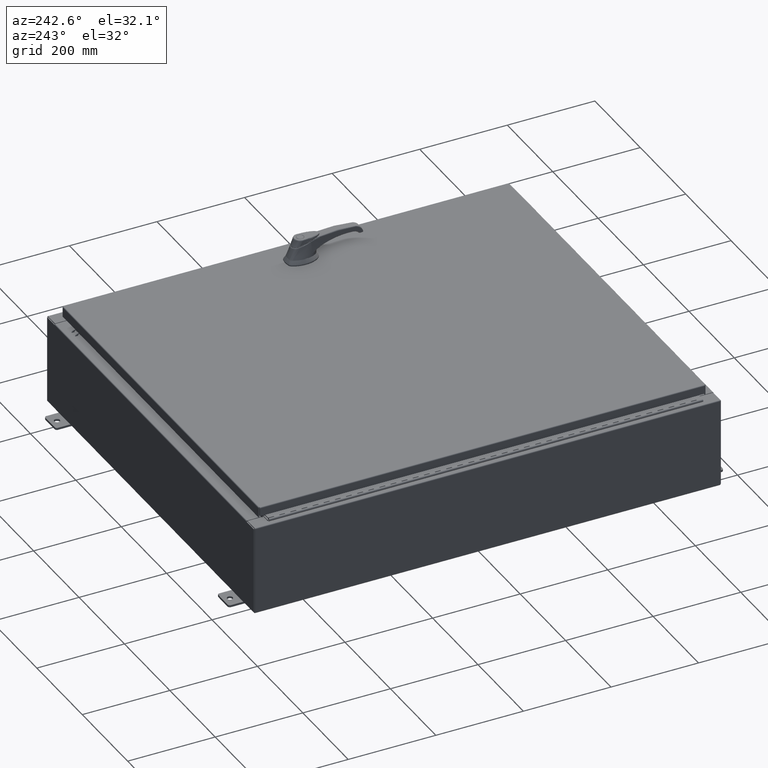
[diagram: clean part render]
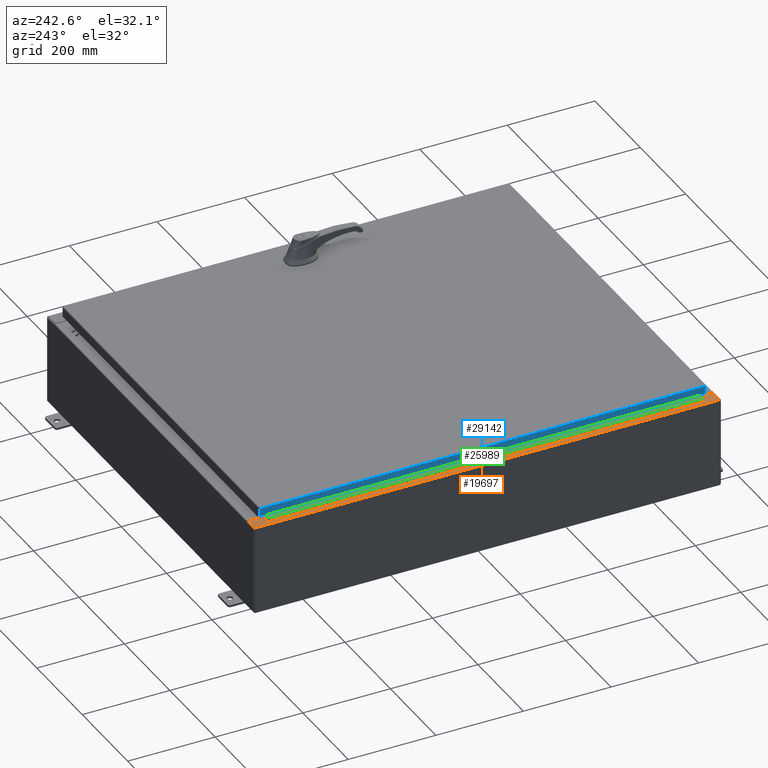
[diagram: same view with three faces highlighted in distinct colors, each labeled with its STEP entity id]
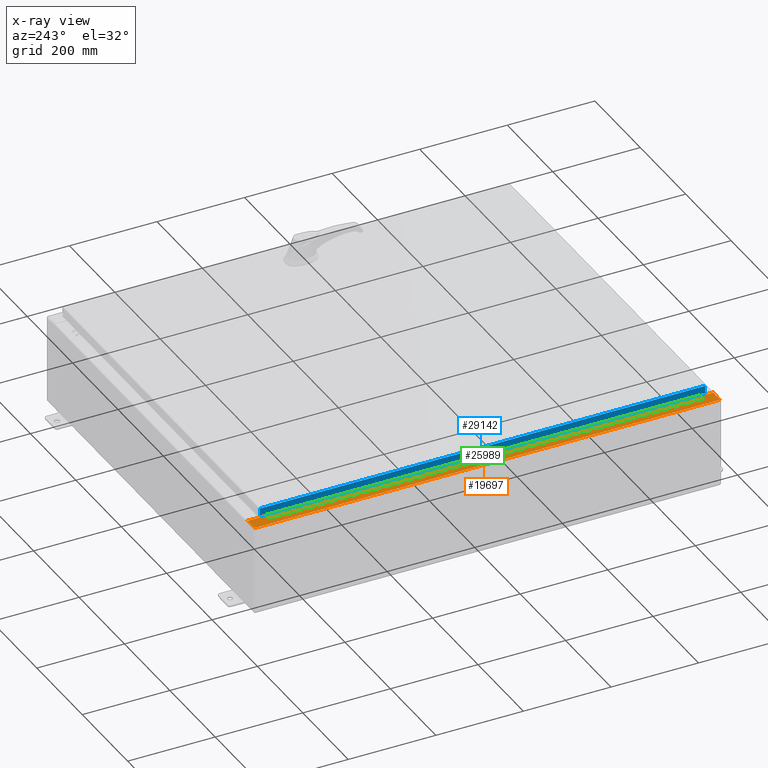
[diagram: x-ray of the same camera — body ghosted, the three highlighted faces saturated]
A machine part, auxiliary view with three faces highlighted in distinct colors.
The next image is the same camera in x-ray (body ghosted, the three faces saturated) — at least one of them is partly hidden behind the body in this view.
Their STEP definitions:

[orange] entity #19697 — the highlighted planar face has unit normal (0, 0, -1).
#917 = CIRCLE ( 'NONE', #25767, 0.01867499999999949400 ) ;
#972 = DIRECTION ( 'NONE',  ( 7.132762385546384700E-015, 0.0000000000000000000, -1.000000000000000000 ) ) ;
#2186 = CARTESIAN_POINT ( 'NONE',  ( -16.69970000000002800, -19.63109999999999300, 7.925300000000008900 ) ) ;
#2750 = VECTOR ( 'NONE', #66821, 39.37007874015748100 ) ;
#3893 = EDGE_CURVE ( 'NONE', #9557, #105285, #14290, .T. ) ;
#5082 = ORIENTED_EDGE ( 'NONE', *, *, #66367, .F. ) ;
#6924 = CARTESIAN_POINT ( 'NONE',  ( -16.69970000000002800, 0.0000000000000000000, 7.925300000000008900 ) ) ;
#7892 = VECTOR ( 'NONE', #42515, 39.37007874015748100 ) ;
#8023 = LINE ( 'NONE', #85854, #57992 ) ;
#8986 = VERTEX_POINT ( 'NONE', #107915 ) ;
#9557 = VERTEX_POINT ( 'NONE', #88850 ) ;
#13078 = LINE ( 'NONE', #26416, #116500 ) ;
#13119 = ORIENTED_EDGE ( 'NONE', *, *, #113433, .T. ) ;
#13179 = LINE ( 'NONE', #94554, #89979 ) ;
#13433 = EDGE_CURVE ( 'NONE', #95841, #115511, #49637, .T. ) ;
#14290 = LINE ( 'NONE', #64344, #120940 ) ;
#15622 = ORIENTED_EDGE ( 'NONE', *, *, #113307, .F. ) ;
#19697 = ADVANCED_FACE ( 'NONE', ( #80169 ), #40763, .F. ) ;
#20060 = EDGE_CURVE ( 'NONE', #128019, #115511, #8023, .T. ) ;
#24351 = VECTOR ( 'NONE', #126250, 39.37007874015748100 ) ;
#24788 = CARTESIAN_POINT ( 'NONE',  ( -16.75005000000003000, 19.63109999999999300, 7.925300000000008900 ) ) ;
#25410 = DIRECTION ( 'NONE',  ( -1.000000000000000000, 0.0000000000000000000, -7.132762385546384700E-015 ) ) ;
#25767 = AXIS2_PLACEMENT_3D ( 'NONE', #47961, #118179, #58007 ) ;
#26416 = CARTESIAN_POINT ( 'NONE',  ( -16.71270000000003000, 19.59374999999999600, 7.925300000000008900 ) ) ;
#29625 = DIRECTION ( 'NONE',  ( -7.132762385546384700E-015, -0.0000000000000000000, 1.000000000000000000 ) ) ;
#32275 = CARTESIAN_POINT ( 'NONE',  ( -16.71270000000003000, 19.59374999999999600, 7.925300000000008900 ) ) ;
#34155 = VERTEX_POINT ( 'NONE', #121904 ) ;
#38554 = DIRECTION ( 'NONE',  ( 1.000000000000000000, 0.0000000000000000000, 0.0000000000000000000 ) ) ;
#40763 = PLANE ( 'NONE',  #45598 ) ;
#42515 = DIRECTION ( 'NONE',  ( -0.0000000000000000000, 1.000000000000000000, -0.0000000000000000000 ) ) ;
#43215 = VERTEX_POINT ( 'NONE', #109818 ) ;
#45598 = AXIS2_PLACEMENT_3D ( 'NONE', #60863, #972, #70982 ) ;
#45890 = CARTESIAN_POINT ( 'NONE',  ( -1.314176917633203400E-013, -20.92530000000006000, 7.925300000000127900 ) ) ;
#47961 = CARTESIAN_POINT ( 'NONE',  ( -16.75005000000003000, 19.61242499999999500, 7.925300000000008900 ) ) ;
#49637 = LINE ( 'NONE', #6924, #2750 ) ;
#55393 = DIRECTION ( 'NONE',  ( 0.0000000000000000000, 1.000000000000000000, 0.0000000000000000000 ) ) ;
#56896 = VECTOR ( 'NONE', #55393, 39.37007874015748100 ) ;
#57992 = VECTOR ( 'NONE', #95920, 39.37007874015748100 ) ;
#58007 = DIRECTION ( 'NONE',  ( 1.000000000000000000, 0.0000000000000000000, 0.0000000000000000000 ) ) ;
#60863 = CARTESIAN_POINT ( 'NONE',  ( -5.679009539018325600E-014, 0.0000000000000000000, 7.925300000000127900 ) ) ;
#62156 = VERTEX_POINT ( 'NONE', #119787 ) ;
#64344 = CARTESIAN_POINT ( 'NONE',  ( -16.69970000000002800, 19.63109999999999300, 7.925300000000008900 ) ) ;
#66367 = EDGE_CURVE ( 'NONE', #8986, #79702, #121677, .T. ) ;
#66494 = VECTOR ( 'NONE', #25410, 39.37007874015748100 ) ;
#66821 = DIRECTION ( 'NONE',  ( 0.0000000000000000000, 1.000000000000000000, 0.0000000000000000000 ) ) ;
#70982 = DIRECTION ( 'NONE',  ( -1.000000000000000000, 0.0000000000000000000, -7.132762385546384700E-015 ) ) ;
#71337 = EDGE_LOOP ( 'NONE', ( #106293, #13119, #128311, #113756, #128941, #77873, #129946, #124426, #15622, #95186, #5082, #124476 ) ) ;
#71410 = VECTOR ( 'NONE', #38554, 39.37007874015748100 ) ;
#74422 = LINE ( 'NONE', #45890, #24351 ) ;
#77873 = ORIENTED_EDGE ( 'NONE', *, *, #13433, .T. ) ;
#79702 = VERTEX_POINT ( 'NONE', #32275 ) ;
#80169 = FACE_OUTER_BOUND ( 'NONE', #71337, .T. ) ;
#85854 = CARTESIAN_POINT ( 'NONE',  ( -16.75005000000003000, -19.63109999999999300, 7.925300000000008900 ) ) ;
#88850 = CARTESIAN_POINT ( 'NONE',  ( -16.69970000000002800, 19.63109999999999300, 7.925300000000008900 ) ) ;
#89518 = EDGE_CURVE ( 'NONE', #79702, #43215, #13078, .T. ) ;
#89644 = CARTESIAN_POINT ( 'NONE',  ( -16.75005000000003000, -19.61242499999999100, 7.925300000000008900 ) ) ;
#89979 = VECTOR ( 'NONE', #124829, 39.37007874015748100 ) ;
#92549 = CARTESIAN_POINT ( 'NONE',  ( -17.91230000000002300, 20.92529999999999600, 7.925300000000000000 ) ) ;
#92555 = DIRECTION ( 'NONE',  ( -1.000000000000000000, 0.0000000000000000000, 0.0000000000000000000 ) ) ;
#93269 = LINE ( 'NONE', #95474, #66494 ) ;
#94114 = LINE ( 'NONE', #92549, #7892 ) ;
#94179 = CARTESIAN_POINT ( 'NONE',  ( -16.75005000000003000, -19.63109999999999300, 7.925300000000008900 ) ) ;
#94430 = EDGE_CURVE ( 'NONE', #130092, #95841, #74422, .T. ) ;
#94554 = CARTESIAN_POINT ( 'NONE',  ( -16.71270000000003000, -19.59374999999999300, 7.925300000000008900 ) ) ;
#95186 = ORIENTED_EDGE ( 'NONE', *, *, #89518, .F. ) ;
#95474 = CARTESIAN_POINT ( 'NONE',  ( -5.679009539018325600E-014, 20.92529999999999600, 7.925300000000127900 ) ) ;
#95841 = VERTEX_POINT ( 'NONE', #120594 ) ;
#95920 = DIRECTION ( 'NONE',  ( 1.000000000000000000, 0.0000000000000000000, 0.0000000000000000000 ) ) ;
#98161 = CIRCLE ( 'NONE', #120184, 0.01867499999999949400 ) ;
#98643 = CARTESIAN_POINT ( 'NONE',  ( -16.75005000000003000, 19.59374999999999600, 7.925300000000008900 ) ) ;
#99745 = DIRECTION ( 'NONE',  ( 1.000000000000000000, 0.0000000000000000000, 0.0000000000000000000 ) ) ;
#101692 = CARTESIAN_POINT ( 'NONE',  ( -16.69970000000002800, 20.92529999999999600, 7.925300000000008900 ) ) ;
#101952 = VERTEX_POINT ( 'NONE', #101692 ) ;
#105285 = VERTEX_POINT ( 'NONE', #24788 ) ;
#105792 = EDGE_CURVE ( 'NONE', #130092, #62156, #94114, .T. ) ;
#106293 = ORIENTED_EDGE ( 'NONE', *, *, #3893, .F. ) ;
#106582 = DIRECTION ( 'NONE',  ( -0.0000000000000000000, -1.000000000000000000, -0.0000000000000000000 ) ) ;
#107915 = CARTESIAN_POINT ( 'NONE',  ( -16.75005000000003000, 19.59374999999999600, 7.925300000000008900 ) ) ;
#109818 = CARTESIAN_POINT ( 'NONE',  ( -16.71270000000003000, -19.59374999999999300, 7.925300000000008900 ) ) ;
#110395 = LINE ( 'NONE', #125703, #56896 ) ;
#111143 = CARTESIAN_POINT ( 'NONE',  ( -17.91230000000002300, -20.92529999999999300, 7.925300000000000000 ) ) ;
#111253 = EDGE_CURVE ( 'NONE', #34155, #128019, #98161, .T. ) ;
#113307 = EDGE_CURVE ( 'NONE', #43215, #34155, #13179, .T. ) ;
#113433 = EDGE_CURVE ( 'NONE', #9557, #101952, #110395, .T. ) ;
#113756 = ORIENTED_EDGE ( 'NONE', *, *, #105792, .F. ) ;
#115511 = VERTEX_POINT ( 'NONE', #2186 ) ;
#116500 = VECTOR ( 'NONE', #106582, 39.37007874015748100 ) ;
#118179 = DIRECTION ( 'NONE',  ( -7.132762385546384700E-015, -0.0000000000000000000, 1.000000000000000000 ) ) ;
#119787 = CARTESIAN_POINT ( 'NONE',  ( -17.91230000000002300, 20.92529999999999600, 7.925300000000000000 ) ) ;
#120184 = AXIS2_PLACEMENT_3D ( 'NONE', #89644, #29625, #99745 ) ;
#120594 = CARTESIAN_POINT ( 'NONE',  ( -16.69970000000002800, -20.92529999999999300, 7.925300000000008900 ) ) ;
#120940 = VECTOR ( 'NONE', #92555, 39.37007874015748100 ) ;
#121677 = LINE ( 'NONE', #98643, #71410 ) ;
#121904 = CARTESIAN_POINT ( 'NONE',  ( -16.75005000000003000, -19.59374999999999300, 7.925300000000008900 ) ) ;
#122299 = EDGE_CURVE ( 'NONE', #101952, #62156, #93269, .T. ) ;
#124426 = ORIENTED_EDGE ( 'NONE', *, *, #111253, .F. ) ;
#124476 = ORIENTED_EDGE ( 'NONE', *, *, #126407, .F. ) ;
#124829 = DIRECTION ( 'NONE',  ( -1.000000000000000000, 0.0000000000000000000, 0.0000000000000000000 ) ) ;
#125703 = CARTESIAN_POINT ( 'NONE',  ( -16.69970000000002800, 0.0000000000000000000, 7.925300000000008900 ) ) ;
#126250 = DIRECTION ( 'NONE',  ( 1.000000000000000000, -3.566381192773192400E-015, 7.132762385546384700E-015 ) ) ;
#126407 = EDGE_CURVE ( 'NONE', #105285, #8986, #917, .T. ) ;
#128019 = VERTEX_POINT ( 'NONE', #94179 ) ;
#128311 = ORIENTED_EDGE ( 'NONE', *, *, #122299, .T. ) ;
#128941 = ORIENTED_EDGE ( 'NONE', *, *, #94430, .T. ) ;
#129946 = ORIENTED_EDGE ( 'NONE', *, *, #20060, .F. ) ;
#130092 = VERTEX_POINT ( 'NONE', #111143 ) ;

[blue] entity #29142 — the highlighted planar face has unit normal (1, -0, -0).
#1149 = ORIENTED_EDGE ( 'NONE', *, *, #81918, .F. ) ;
#3914 = CARTESIAN_POINT ( 'NONE',  ( -17.07800000000000300, -20.09400000000000100, -0.7949999999999997100 ) ) ;
#6310 = CARTESIAN_POINT ( 'NONE',  ( -17.07799999999999600, 20.00515786437628000, -0.7949999999999948200 ) ) ;
#7802 = VECTOR ( 'NONE', #86803, 39.37007874015748100 ) ;
#10687 = VECTOR ( 'NONE', #113855, 39.37007874015748100 ) ;
#13804 = LINE ( 'NONE', #3914, #10687 ) ;
#13939 = ORIENTED_EDGE ( 'NONE', *, *, #72722, .F. ) ;
#25960 = CARTESIAN_POINT ( 'NONE',  ( -17.07799999999999900, -20.00515786437626900, -0.07469999999999976700 ) ) ;
#29142 = ADVANCED_FACE ( 'NONE', ( #95531 ), #114898, .F. ) ;
#34702 = CARTESIAN_POINT ( 'NONE',  ( -17.07799999999999600, 1.857449986495396100E-015, 5.207755671951099000E-014 ) ) ;
#37428 = VERTEX_POINT ( 'NONE', #6310 ) ;
#43966 = CARTESIAN_POINT ( 'NONE',  ( -17.07799999999999600, 20.00515786437626900, -0.08770000000000439900 ) ) ;
#56106 = LINE ( 'NONE', #111413, #106425 ) ;
#61160 = CARTESIAN_POINT ( 'NONE',  ( -17.07799999999999900, -20.00515786437626900, -0.08770000000000224800 ) ) ;
#61648 = VERTEX_POINT ( 'NONE', #72507 ) ;
#61774 = VERTEX_POINT ( 'NONE', #43966 ) ;
#62510 = EDGE_LOOP ( 'NONE', ( #13939, #121496, #76965, #1149 ) ) ;
#63396 = EDGE_CURVE ( 'NONE', #61774, #37428, #56106, .T. ) ;
#72507 = CARTESIAN_POINT ( 'NONE',  ( -17.07800000000000300, -20.00515786437626500, -0.7949999999999996000 ) ) ;
#72722 = EDGE_CURVE ( 'NONE', #61774, #90250, #100883, .T. ) ;
#74144 = VECTOR ( 'NONE', #81921, 39.37007874015748100 ) ;
#76965 = ORIENTED_EDGE ( 'NONE', *, *, #83448, .F. ) ;
#81918 = EDGE_CURVE ( 'NONE', #90250, #61648, #111255, .T. ) ;
#81921 = DIRECTION ( 'NONE',  ( -1.087627348925747400E-016, -1.000000000000000000, 1.087627348925754300E-016 ) ) ;
#83448 = EDGE_CURVE ( 'NONE', #61648, #37428, #13804, .T. ) ;
#86803 = DIRECTION ( 'NONE',  ( -3.034122441942816100E-015, 6.982962677686267500E-015, -1.000000000000000000 ) ) ;
#90250 = VERTEX_POINT ( 'NONE', #61160 ) ;
#95531 = FACE_OUTER_BOUND ( 'NONE', #62510, .T. ) ;
#100883 = LINE ( 'NONE', #102126, #74144 ) ;
#102126 = CARTESIAN_POINT ( 'NONE',  ( -17.07799999999999900, -20.09400000000000100, -0.08770000000000004200 ) ) ;
#106425 = VECTOR ( 'NONE', #121509, 39.37007874015748100 ) ;
#111255 = LINE ( 'NONE', #25960, #7802 ) ;
#111413 = CARTESIAN_POINT ( 'NONE',  ( -17.07799999999999600, 20.00515786437627200, 1.917728274476724300E-013 ) ) ;
#113631 = DIRECTION ( 'NONE',  ( 1.000000000000000000, -1.087627348925750600E-016, -3.034122441942816500E-015 ) ) ;
#113855 = DIRECTION ( 'NONE',  ( 1.087627348925754300E-016, 1.000000000000000000, 1.223580767541473800E-016 ) ) ;
#114898 = PLANE ( 'NONE',  #127266 ) ;
#121496 = ORIENTED_EDGE ( 'NONE', *, *, #63396, .T. ) ;
#121509 = DIRECTION ( 'NONE',  ( -3.034122441942816100E-015, 6.982962677686267500E-015, -1.000000000000000000 ) ) ;
#125069 = DIRECTION ( 'NONE',  ( -3.034122441942816500E-015, 0.0000000000000000000, -1.000000000000000000 ) ) ;
#127266 = AXIS2_PLACEMENT_3D ( 'NONE', #34702, #113631, #125069 ) ;

[green] entity #25989 — the highlighted planar face has unit normal (-0, -0, 1).
#20 = VERTEX_POINT ( 'NONE', #100332 ) ;
#82 = ORIENTED_EDGE ( 'NONE', *, *, #40855, .F. ) ;
#139 = LINE ( 'NONE', #123339, #73740 ) ;
#249 = VERTEX_POINT ( 'NONE', #72758 ) ;
#345 = CARTESIAN_POINT ( 'NONE',  ( -0.6869999999999973900, 0.8004999999999995500, -37.00000000000000000 ) ) ;
#376 = LINE ( 'NONE', #1410, #53527 ) ;
#483 = CARTESIAN_POINT ( 'NONE',  ( -0.6869999999999978300, 0.6754999999999996600, -17.50000000000000000 ) ) ;
#561 = CARTESIAN_POINT ( 'NONE',  ( -0.6869999999999982800, 0.5504999999999997700, -12.49999999999999800 ) ) ;
#777 = VERTEX_POINT ( 'NONE', #73774 ) ;
#888 = VECTOR ( 'NONE', #12723, 39.37007874015748100 ) ;
#1020 = CARTESIAN_POINT ( 'NONE',  ( -0.6869999999999982800, 0.5504999999999997700, -7.000000000000000000 ) ) ;
#1058 = CARTESIAN_POINT ( 'NONE',  ( -0.6869999999999978300, 0.6754999999999996600, -9.500000000000000000 ) ) ;
#1184 = ORIENTED_EDGE ( 'NONE', *, *, #127393, .F. ) ;
#1204 = ORIENTED_EDGE ( 'NONE', *, *, #37171, .T. ) ;
#1348 = LINE ( 'NONE', #41724, #107973 ) ;
#1392 = CARTESIAN_POINT ( 'NONE',  ( -0.6869999999999978300, 0.6754999999999996600, -18.50000000000000000 ) ) ;
#1410 = CARTESIAN_POINT ( 'NONE',  ( -0.6869999999999973900, 0.8004999999999995500, -2.999999999999999600 ) ) ;
#1465 = CARTESIAN_POINT ( 'NONE',  ( -0.6869999999999978300, 0.6754999999999996600, -39.00000000000000000 ) ) ;
#1702 = EDGE_CURVE ( 'NONE', #116717, #46305, #129111, .T. ) ;
#1719 = ORIENTED_EDGE ( 'NONE', *, *, #37353, .F. ) ;
#1907 = CARTESIAN_POINT ( 'NONE',  ( -0.6869999999999973900, 0.8004999999999995500, -19.00000000000000000 ) ) ;
#2244 = EDGE_CURVE ( 'NONE', #41322, #7007, #20844, .T. ) ;
#2564 = VECTOR ( 'NONE', #13511, 39.37007874015748100 ) ;
#2858 = ORIENTED_EDGE ( 'NONE', *, *, #3223, .F. ) ;
#2960 = EDGE_CURVE ( 'NONE', #111873, #42062, #26985, .T. ) ;
#3138 = EDGE_CURVE ( 'NONE', #7007, #95874, #86548, .T. ) ;
#3223 = EDGE_CURVE ( 'NONE', #6180, #23355, #34698, .T. ) ;
#3275 = DIRECTION ( 'NONE',  ( 0.0000000000000000000, 0.0000000000000000000, 1.000000000000000000 ) ) ;
#3470 = CARTESIAN_POINT ( 'NONE',  ( -0.6869999999999982800, 0.5504999999999997700, -33.50000000000000000 ) ) ;
#3593 = CARTESIAN_POINT ( 'NONE',  ( -0.6869999999999973900, 0.8004999999999995500, -24.99999999999999600 ) ) ;
#3608 = CARTESIAN_POINT ( 'NONE',  ( -0.6869999999999973900, 0.8004999999999995500, -2.000000000000000000 ) ) ;
#3631 = CARTESIAN_POINT ( 'NONE',  ( -0.6869999999999982800, 0.5504999999999997700, -36.50000000000000000 ) ) ;
#3692 = VERTEX_POINT ( 'NONE', #561 ) ;
#3716 = DIRECTION ( 'NONE',  ( -3.389037039080723100E-015, -1.000000000000000000, 0.0000000000000000000 ) ) ;
#4010 = CARTESIAN_POINT ( 'NONE',  ( -0.6869999999999978300, 0.6754999999999996600, -10.50000000000000000 ) ) ;
#4036 = LINE ( 'NONE', #102992, #888 ) ;
#4124 = VECTOR ( 'NONE', #127980, 39.37007874015748100 ) ;
#4176 = LINE ( 'NONE', #70193, #54164 ) ;
#4215 = VERTEX_POINT ( 'NONE', #1020 ) ;
#4368 = EDGE_CURVE ( 'NONE', #118840, #21484, #6392, .T. ) ;
#4373 = LINE ( 'NONE', #84716, #81172 ) ;
#4602 = ORIENTED_EDGE ( 'NONE', *, *, #12697, .F. ) ;
#4774 = DIRECTION ( 'NONE',  ( 3.389037039080723100E-015, 1.000000000000000000, -0.0000000000000000000 ) ) ;
#4941 = EDGE_CURVE ( 'NONE', #98412, #109407, #72066, .T. ) ;
#5113 = VECTOR ( 'NONE', #85545, 39.37007874015748100 ) ;
#5168 = VECTOR ( 'NONE', #16490, 39.37007874015748100 ) ;
#5508 = EDGE_CURVE ( 'NONE', #107612, #39272, #37487, .T. ) ;
#5528 = DIRECTION ( 'NONE',  ( 0.0000000000000000000, 0.0000000000000000000, 1.000000000000000000 ) ) ;
#5673 = CARTESIAN_POINT ( 'NONE',  ( -0.6869999999999978300, 0.6754999999999996600, -34.50000000000000000 ) ) ;
#5690 = EDGE_CURVE ( 'NONE', #129575, #119970, #113416, .T. ) ;
#5768 = CARTESIAN_POINT ( 'NONE',  ( -0.6869999999999973900, 0.8004999999999995500, -25.50000000000000400 ) ) ;
#5848 = CARTESIAN_POINT ( 'NONE',  ( -0.6869999999999978300, 0.6754999999999996600, -39.00000000000000000 ) ) ;
#5905 = VERTEX_POINT ( 'NONE', #98281 ) ;
#5907 = VECTOR ( 'NONE', #81400, 39.37007874015748100 ) ;
#5980 = CARTESIAN_POINT ( 'NONE',  ( -0.6869999999999982800, 0.5504999999999997700, -3.500000000000000000 ) ) ;
#6180 = VERTEX_POINT ( 'NONE', #46314 ) ;
#6206 = DIRECTION ( 'NONE',  ( 1.000000000000000000, -3.369016658928398200E-015, 0.0000000000000000000 ) ) ;
#6208 = ORIENTED_EDGE ( 'NONE', *, *, #10062, .F. ) ;
#6392 = LINE ( 'NONE', #89079, #9524 ) ;
#6667 = CARTESIAN_POINT ( 'NONE',  ( -0.6869999999999978300, 0.6754999999999996600, -39.00000000000000000 ) ) ;
#6836 = VECTOR ( 'NONE', #94772, 39.37007874015748100 ) ;
#6972 = VECTOR ( 'NONE', #120114, 39.37007874015748100 ) ;
#6978 = CARTESIAN_POINT ( 'NONE',  ( -0.6869999999999973900, 0.8004999999999995500, -36.50000000000000000 ) ) ;
#6992 = EDGE_CURVE ( 'NONE', #98826, #72642, #51959, .T. ) ;
#7007 = VERTEX_POINT ( 'NONE', #120320 ) ;
#7045 = DIRECTION ( 'NONE',  ( 0.0000000000000000000, 0.0000000000000000000, 1.000000000000000000 ) ) ;
#7049 = EDGE_CURVE ( 'NONE', #99880, #30073, #48832, .T. ) ;
#7072 = LINE ( 'NONE', #44354, #53918 ) ;
#7188 = ORIENTED_EDGE ( 'NONE', *, *, #3138, .F. ) ;
#7277 = LINE ( 'NONE', #62753, #30733 ) ;
#7300 = ORIENTED_EDGE ( 'NONE', *, *, #66598, .F. ) ;
#7446 = DIRECTION ( 'NONE',  ( 0.0000000000000000000, -0.0000000000000000000, -1.000000000000000000 ) ) ;
#7492 = VERTEX_POINT ( 'NONE', #88205 ) ;
#7523 = LINE ( 'NONE', #5768, #34095 ) ;
#7794 = VERTEX_POINT ( 'NONE', #61764 ) ;
#7868 = CARTESIAN_POINT ( 'NONE',  ( -0.6869999999999973900, 0.8004999999999995500, -20.50000000000000400 ) ) ;
#7869 = ORIENTED_EDGE ( 'NONE', *, *, #70192, .F. ) ;
#7896 = EDGE_CURVE ( 'NONE', #7492, #121866, #22223, .T. ) ;
#7953 = ORIENTED_EDGE ( 'NONE', *, *, #105397, .F. ) ;
#7967 = VECTOR ( 'NONE', #13545, 39.37007874015748100 ) ;
#8326 = DIRECTION ( 'NONE',  ( 3.389037039080723100E-015, 1.000000000000000000, -0.0000000000000000000 ) ) ;
#8482 = EDGE_CURVE ( 'NONE', #16425, #34247, #57969, .T. ) ;
#8580 = VERTEX_POINT ( 'NONE', #97037 ) ;
#8712 = LINE ( 'NONE', #51857, #29048 ) ;
#8824 = VECTOR ( 'NONE', #75725, 39.37007874015748100 ) ;
#8891 = VERTEX_POINT ( 'NONE', #86845 ) ;
#8946 = EDGE_CURVE ( 'NONE', #25554, #41354, #50114, .T. ) ;
#8984 = CARTESIAN_POINT ( 'NONE',  ( -0.6869999999999978300, 0.6754999999999996600, -39.00000000000000000 ) ) ;
#9018 = CARTESIAN_POINT ( 'NONE',  ( -0.6869999999999973900, 0.8004999999999995500, -17.99999999999999600 ) ) ;
#9142 = VECTOR ( 'NONE', #53233, 39.37007874015748100 ) ;
#9152 = DIRECTION ( 'NONE',  ( 3.389037039080723100E-015, 1.000000000000000000, -0.0000000000000000000 ) ) ;
#9284 = ORIENTED_EDGE ( 'NONE', *, *, #29844, .F. ) ;
#9464 = VERTEX_POINT ( 'NONE', #83650 ) ;
#9524 = VECTOR ( 'NONE', #11346, 39.37007874015748100 ) ;
#9617 = ORIENTED_EDGE ( 'NONE', *, *, #7049, .F. ) ;
#9961 = DIRECTION ( 'NONE',  ( 3.389037039080723100E-015, 1.000000000000000000, -0.0000000000000000000 ) ) ;
#9992 = EDGE_CURVE ( 'NONE', #5905, #82403, #70381, .T. ) ;
#10062 = EDGE_CURVE ( 'NONE', #49108, #128323, #10893, .T. ) ;
#10144 = CARTESIAN_POINT ( 'NONE',  ( -0.6869999999999978300, 0.6754999999999996600, -39.00000000000000000 ) ) ;
#10256 = DIRECTION ( 'NONE',  ( -3.389037039080723100E-015, -1.000000000000000000, 0.0000000000000000000 ) ) ;
#10336 = LINE ( 'NONE', #28044, #30643 ) ;
#10344 = CARTESIAN_POINT ( 'NONE',  ( -0.6869999999999978300, 0.6754999999999996600, -39.00000000000000000 ) ) ;
#10389 = ORIENTED_EDGE ( 'NONE', *, *, #51626, .F. ) ;
#10430 = ORIENTED_EDGE ( 'NONE', *, *, #96540, .F. ) ;
#10437 = DIRECTION ( 'NONE',  ( 3.389037039080723100E-015, 1.000000000000000000, -0.0000000000000000000 ) ) ;
#10551 = VECTOR ( 'NONE', #45702, 39.37007874015748100 ) ;
#10788 = VECTOR ( 'NONE', #72715, 39.37007874015748100 ) ;
#10842 = DIRECTION ( 'NONE',  ( 0.0000000000000000000, -0.0000000000000000000, -1.000000000000000000 ) ) ;
#10893 = LINE ( 'NONE', #5980, #114297 ) ;
#10904 = EDGE_CURVE ( 'NONE', #70438, #105791, #31074, .T. ) ;
#11108 = LINE ( 'NONE', #104237, #7967 ) ;
#11111 = DIRECTION ( 'NONE',  ( 3.389037039080723100E-015, 1.000000000000000000, -0.0000000000000000000 ) ) ;
#11118 = CARTESIAN_POINT ( 'NONE',  ( -0.6869999999999978300, 0.6754999999999996600, -4.000000000000000000 ) ) ;
#11155 = VERTEX_POINT ( 'NONE', #97751 ) ;
#11164 = CARTESIAN_POINT ( 'NONE',  ( -0.6869999999999982800, 0.5504999999999997700, -33.00000000000000000 ) ) ;
#11253 = ORIENTED_EDGE ( 'NONE', *, *, #30486, .F. ) ;
#11311 = CARTESIAN_POINT ( 'NONE',  ( -0.6869999999999982800, 0.5504999999999997700, -13.50000000000000000 ) ) ;
#11346 = DIRECTION ( 'NONE',  ( 3.389037039080723100E-015, 1.000000000000000000, -0.0000000000000000000 ) ) ;
#11361 = LINE ( 'NONE', #44954, #91299 ) ;
#11438 = VERTEX_POINT ( 'NONE', #111445 ) ;
#11446 = VECTOR ( 'NONE', #126524, 39.37007874015748100 ) ;
#11466 = ORIENTED_EDGE ( 'NONE', *, *, #84494, .F. ) ;
#11538 = CARTESIAN_POINT ( 'NONE',  ( -0.6869999999999973900, 0.8004999999999995500, -35.00000000000000000 ) ) ;
#11562 = CARTESIAN_POINT ( 'NONE',  ( -0.6869999999999973900, 0.8004999999999995500, -38.50000000000000000 ) ) ;
#11592 = VECTOR ( 'NONE', #127943, 39.37007874015748100 ) ;
#11637 = CARTESIAN_POINT ( 'NONE',  ( -0.6869999999999978300, 0.6754999999999996600, -15.50000000000000000 ) ) ;
#11677 = CARTESIAN_POINT ( 'NONE',  ( -0.6869999999999982800, 0.5504999999999997700, -34.00000000000000000 ) ) ;
#11715 = EDGE_CURVE ( 'NONE', #24943, #3692, #81152, .T. ) ;
#11900 = VERTEX_POINT ( 'NONE', #91590 ) ;
#12040 = VECTOR ( 'NONE', #95807, 39.37007874015748100 ) ;
#12178 = CARTESIAN_POINT ( 'NONE',  ( -0.6869999999999973900, 0.8004999999999995500, -11.50000000000000000 ) ) ;
#12192 = LINE ( 'NONE', #119124, #115588 ) ;
#12300 = LINE ( 'NONE', #59476, #65495 ) ;
#12335 = VECTOR ( 'NONE', #117470, 39.37007874015748100 ) ;
#12442 = CARTESIAN_POINT ( 'NONE',  ( -0.6869999999999982800, 0.5504999999999997700, -27.00000000000000000 ) ) ;
#12679 = VERTEX_POINT ( 'NONE', #76966 ) ;
#12697 = EDGE_CURVE ( 'NONE', #35797, #119187, #49753, .T. ) ;
#12723 = DIRECTION ( 'NONE',  ( -3.389037039080723100E-015, -1.000000000000000000, 0.0000000000000000000 ) ) ;
#12764 = CARTESIAN_POINT ( 'NONE',  ( -0.6869999999999978300, 0.6754999999999996600, -39.00000000000000000 ) ) ;
#12963 = EDGE_CURVE ( 'NONE', #85179, #67539, #4373, .T. ) ;
#13093 = EDGE_CURVE ( 'NONE', #92191, #64390, #107847, .T. ) ;
#13230 = LINE ( 'NONE', #127045, #42790 ) ;
#13253 = CARTESIAN_POINT ( 'NONE',  ( -0.6869999999999982800, 0.5504999999999997700, -2.500000000000000000 ) ) ;
#13271 = CARTESIAN_POINT ( 'NONE',  ( -0.6869999999999982800, 0.5504999999999997700, -29.50000000000000000 ) ) ;
#13371 = ORIENTED_EDGE ( 'NONE', *, *, #62657, .F. ) ;
#13408 = LINE ( 'NONE', #127084, #33713 ) ;
#13451 = ORIENTED_EDGE ( 'NONE', *, *, #110613, .T. ) ;
#13511 = DIRECTION ( 'NONE',  ( 0.0000000000000000000, 0.0000000000000000000, 1.000000000000000000 ) ) ;
#13531 = VERTEX_POINT ( 'NONE', #47931 ) ;
#13545 = DIRECTION ( 'NONE',  ( -3.389037039080723100E-015, -1.000000000000000000, 0.0000000000000000000 ) ) ;
#13701 = DIRECTION ( 'NONE',  ( 0.0000000000000000000, -0.0000000000000000000, -1.000000000000000000 ) ) ;
#13714 = EDGE_CURVE ( 'NONE', #777, #29370, #66859, .T. ) ;
#14115 = CARTESIAN_POINT ( 'NONE',  ( -0.6869999999999982800, 0.5504999999999997700, -20.50000000000000400 ) ) ;
#14123 = DIRECTION ( 'NONE',  ( 3.389037039080723100E-015, 1.000000000000000000, -0.0000000000000000000 ) ) ;
#14366 = DIRECTION ( 'NONE',  ( 3.389037039080723100E-015, 1.000000000000000000, -0.0000000000000000000 ) ) ;
#14386 = VERTEX_POINT ( 'NONE', #106493 ) ;
#14411 = CARTESIAN_POINT ( 'NONE',  ( -0.6869999999999973900, 0.8004999999999995500, -27.00000000000000000 ) ) ;
#14426 = EDGE_CURVE ( 'NONE', #75580, #11900, #93502, .T. ) ;
#14458 = EDGE_CURVE ( 'NONE', #27361, #25062, #90336, .T. ) ;
#14510 = EDGE_CURVE ( 'NONE', #37877, #21812, #87184, .T. ) ;
#14837 = DIRECTION ( 'NONE',  ( -3.389037039080723100E-015, -1.000000000000000000, 0.0000000000000000000 ) ) ;
#14848 = ORIENTED_EDGE ( 'NONE', *, *, #19861, .T. ) ;
#14913 = EDGE_CURVE ( 'NONE', #78584, #7794, #55617, .T. ) ;
#15047 = EDGE_CURVE ( 'NONE', #110137, #67539, #49377, .T. ) ;
#15182 = LINE ( 'NONE', #92310, #95118 ) ;
#15193 = VERTEX_POINT ( 'NONE', #17716 ) ;
#15229 = CARTESIAN_POINT ( 'NONE',  ( -0.6869999999999973900, 0.8004999999999995500, -16.50000000000000000 ) ) ;
#15478 = ORIENTED_EDGE ( 'NONE', *, *, #14426, .F. ) ;
#15484 = CARTESIAN_POINT ( 'NONE',  ( -0.6869999999999973900, 0.8004999999999995500, -21.50000000000000400 ) ) ;
#15567 = EDGE_CURVE ( 'NONE', #48332, #89641, #41486, .T. ) ;
#15708 = ORIENTED_EDGE ( 'NONE', *, *, #18262, .T. ) ;
#15783 = LINE ( 'NONE', #76827, #36075 ) ;
#15972 = VECTOR ( 'NONE', #116493, 39.37007874015748100 ) ;
#16064 = VERTEX_POINT ( 'NONE', #45833 ) ;
#16131 = DIRECTION ( 'NONE',  ( 0.0000000000000000000, 0.0000000000000000000, 1.000000000000000000 ) ) ;
#16292 = CARTESIAN_POINT ( 'NONE',  ( -0.6869999999999982800, 0.5504999999999997700, -35.50000000000000000 ) ) ;
#16425 = VERTEX_POINT ( 'NONE', #1058 ) ;
#16454 = ORIENTED_EDGE ( 'NONE', *, *, #112581, .F. ) ;
#16490 = DIRECTION ( 'NONE',  ( 0.0000000000000000000, -0.0000000000000000000, -1.000000000000000000 ) ) ;
#16517 = CARTESIAN_POINT ( 'NONE',  ( -0.6869999999999978300, 0.6754999999999996600, -39.00000000000000000 ) ) ;
#16526 = LINE ( 'NONE', #52520, #66561 ) ;
#16582 = VECTOR ( 'NONE', #67921, 39.37007874015748100 ) ;
#16703 = LINE ( 'NONE', #54472, #66765 ) ;
#16719 = CARTESIAN_POINT ( 'NONE',  ( -0.6869999999999973900, 0.8004999999999995500, -8.500000000000000000 ) ) ;
#16906 = CARTESIAN_POINT ( 'NONE',  ( -0.6869999999999978300, 0.6754999999999996600, -39.00000000000000000 ) ) ;
#16925 = ORIENTED_EDGE ( 'NONE', *, *, #47910, .F. ) ;
#16988 = VERTEX_POINT ( 'NONE', #114321 ) ;
#17012 = VERTEX_POINT ( 'NONE', #94619 ) ;
#17022 = CARTESIAN_POINT ( 'NONE',  ( -0.6869999999999982800, 0.5504999999999997700, -7.499999999999999100 ) ) ;
#17026 = VERTEX_POINT ( 'NONE', #84946 ) ;
#17051 = DIRECTION ( 'NONE',  ( -3.389037039080723100E-015, -1.000000000000000000, 0.0000000000000000000 ) ) ;
#17187 = CARTESIAN_POINT ( 'NONE',  ( -0.6869999999999973900, 0.8004999999999995500, -24.50000000000000000 ) ) ;
#17218 = LINE ( 'NONE', #104340, #64110 ) ;
#17497 = CARTESIAN_POINT ( 'NONE',  ( -0.6869999999999978300, 0.6754999999999996600, -39.00000000000000000 ) ) ;
#17574 = ORIENTED_EDGE ( 'NONE', *, *, #41951, .T. ) ;
#17683 = VECTOR ( 'NONE', #128481, 39.37007874015748100 ) ;
#17716 = CARTESIAN_POINT ( 'NONE',  ( -0.6869999999999978300, 0.6754999999999996600, -17.00000000000000000 ) ) ;
#17903 = VERTEX_POINT ( 'NONE', #62869 ) ;
#18206 = ORIENTED_EDGE ( 'NONE', *, *, #4941, .T. ) ;
#18240 = CARTESIAN_POINT ( 'NONE',  ( -0.6869999999999973900, 0.8004999999999995500, -5.500000000000000000 ) ) ;
#18262 = EDGE_CURVE ( 'NONE', #20581, #95874, #97608, .T. ) ;
#18344 = LINE ( 'NONE', #67631, #121841 ) ;
#18347 = VECTOR ( 'NONE', #33069, 39.37007874015748100 ) ;
#18518 = EDGE_CURVE ( 'NONE', #100463, #4215, #91341, .T. ) ;
#18823 = VECTOR ( 'NONE', #42625, 39.37007874015748100 ) ;
#18846 = CARTESIAN_POINT ( 'NONE',  ( -0.6869999999999978300, 0.6754999999999996600, -37.50000000000000000 ) ) ;
#19102 = ORIENTED_EDGE ( 'NONE', *, *, #62153, .F. ) ;
#19237 = LINE ( 'NONE', #123341, #36351 ) ;
#19491 = ORIENTED_EDGE ( 'NONE', *, *, #74861, .F. ) ;
#19516 = CARTESIAN_POINT ( 'NONE',  ( -0.6869999999999978300, 0.6754999999999996600, -39.00000000000000000 ) ) ;
#19743 = LINE ( 'NONE', #128079, #16582 ) ;
#19861 = EDGE_CURVE ( 'NONE', #103472, #60751, #23764, .T. ) ;
#20422 = CARTESIAN_POINT ( 'NONE',  ( -0.6869999999999982800, 0.5504999999999997700, -25.50000000000000400 ) ) ;
#20581 = VERTEX_POINT ( 'NONE', #93062 ) ;
#20626 = ORIENTED_EDGE ( 'NONE', *, *, #14458, .T. ) ;
#20822 = CARTESIAN_POINT ( 'NONE',  ( -0.6869999999999978300, 0.6754999999999996600, -39.00000000000000000 ) ) ;
#20843 = VECTOR ( 'NONE', #118545, 39.37007874015748100 ) ;
#20844 = LINE ( 'NONE', #60973, #70897 ) ;
#20887 = ORIENTED_EDGE ( 'NONE', *, *, #21167, .F. ) ;
#20891 = CARTESIAN_POINT ( 'NONE',  ( -0.6869999999999982800, 0.5504999999999997700, -21.50000000000000400 ) ) ;
#20914 = CARTESIAN_POINT ( 'NONE',  ( -0.6869999999999982800, 0.5504999999999997700, -19.50000000000000000 ) ) ;
#20929 = VECTOR ( 'NONE', #88242, 39.37007874015748100 ) ;
#21109 = DIRECTION ( 'NONE',  ( 0.0000000000000000000, -0.0000000000000000000, -1.000000000000000000 ) ) ;
#21161 = ORIENTED_EDGE ( 'NONE', *, *, #88179, .F. ) ;
#21167 = EDGE_CURVE ( 'NONE', #66339, #62144, #120958, .T. ) ;
#21266 = VECTOR ( 'NONE', #43532, 39.37007874015748100 ) ;
#21302 = CARTESIAN_POINT ( 'NONE',  ( -0.6869999999999982800, 0.5504999999999997700, -27.50000000000000000 ) ) ;
#21321 = VERTEX_POINT ( 'NONE', #104289 ) ;
#21446 = EDGE_CURVE ( 'NONE', #76191, #78035, #25269, .T. ) ;
#21484 = VERTEX_POINT ( 'NONE', #128367 ) ;
#21591 = CARTESIAN_POINT ( 'NONE',  ( -0.6869999999999982800, 0.5504999999999997700, -11.00000000000000000 ) ) ;
#21715 = CARTESIAN_POINT ( 'NONE',  ( -0.6869999999999982800, 0.5504999999999997700, -17.50000000000000000 ) ) ;
#21812 = VERTEX_POINT ( 'NONE', #41006 ) ;
#22038 = CARTESIAN_POINT ( 'NONE',  ( -0.6869999999999978300, 0.6754999999999996600, -39.00000000000000000 ) ) ;
#22141 = VECTOR ( 'NONE', #58678, 39.37007874015748100 ) ;
#22223 = LINE ( 'NONE', #3593, #48714 ) ;
#22250 = DIRECTION ( 'NONE',  ( -3.389037039080723100E-015, -1.000000000000000000, 0.0000000000000000000 ) ) ;
#22289 = DIRECTION ( 'NONE',  ( -3.389037039080723100E-015, -1.000000000000000000, 0.0000000000000000000 ) ) ;
#22383 = EDGE_CURVE ( 'NONE', #54428, #101847, #125489, .T. ) ;
#22631 = DIRECTION ( 'NONE',  ( 0.0000000000000000000, 0.0000000000000000000, 1.000000000000000000 ) ) ;
#22676 = VECTOR ( 'NONE', #13701, 39.37007874015748100 ) ;
#22810 = VECTOR ( 'NONE', #7446, 39.37007874015748100 ) ;
#22821 = VECTOR ( 'NONE', #49130, 39.37007874015748100 ) ;
#22875 = VECTOR ( 'NONE', #16131, 39.37007874015748100 ) ;
#22970 = CARTESIAN_POINT ( 'NONE',  ( -0.6869999999999982800, 0.5504999999999997700, -30.50000000000000400 ) ) ;
#23026 = DIRECTION ( 'NONE',  ( 0.0000000000000000000, -0.0000000000000000000, -1.000000000000000000 ) ) ;
#23051 = CARTESIAN_POINT ( 'NONE',  ( -0.6869999999999978300, 0.6754999999999996600, -39.00000000000000000 ) ) ;
#23355 = VERTEX_POINT ( 'NONE', #36008 ) ;
#23385 = DIRECTION ( 'NONE',  ( 0.0000000000000000000, -0.0000000000000000000, -1.000000000000000000 ) ) ;
#23428 = CARTESIAN_POINT ( 'NONE',  ( -0.6869999999999978300, 0.6754999999999996600, -19.00000000000000000 ) ) ;
#23645 = DIRECTION ( 'NONE',  ( -3.389037039080723100E-015, -1.000000000000000000, 0.0000000000000000000 ) ) ;
#23764 = LINE ( 'NONE', #12764, #100538 ) ;
#23839 = VECTOR ( 'NONE', #14366, 39.37007874015748100 ) ;
#23940 = EDGE_CURVE ( 'NONE', #20581, #100463, #114195, .T. ) ;
#24228 = DIRECTION ( 'NONE',  ( 0.0000000000000000000, -0.0000000000000000000, -1.000000000000000000 ) ) ;
#24285 = VECTOR ( 'NONE', #24228, 39.37007874015748100 ) ;
#24365 = ORIENTED_EDGE ( 'NONE', *, *, #105969, .T. ) ;
#24453 = VERTEX_POINT ( 'NONE', #90612 ) ;
#24595 = ORIENTED_EDGE ( 'NONE', *, *, #124432, .F. ) ;
#24850 = VECTOR ( 'NONE', #55139, 39.37007874015748100 ) ;
#24939 = CARTESIAN_POINT ( 'NONE',  ( -0.6869999999999982800, 0.5504999999999997700, -9.500000000000000000 ) ) ;
#24943 = VERTEX_POINT ( 'NONE', #51942 ) ;
#24987 = VECTOR ( 'NONE', #117183, 39.37007874015748100 ) ;
#25062 = VERTEX_POINT ( 'NONE', #95385 ) ;
#25187 = ORIENTED_EDGE ( 'NONE', *, *, #71997, .T. ) ;
#25269 = LINE ( 'NONE', #17497, #102087 ) ;
#25491 = VERTEX_POINT ( 'NONE', #21302 ) ;
#25554 = VERTEX_POINT ( 'NONE', #11637 ) ;
#25928 = EDGE_CURVE ( 'NONE', #17026, #124763, #7523, .T. ) ;
#25936 = LINE ( 'NONE', #89102, #22821 ) ;
#25989 = ADVANCED_FACE ( 'NONE', ( #57508 ), #45905, .T. ) ;
#26565 = VERTEX_POINT ( 'NONE', #65085 ) ;
#26611 = ORIENTED_EDGE ( 'NONE', *, *, #2244, .F. ) ;
#26750 = VECTOR ( 'NONE', #104292, 39.37007874015748100 ) ;
#26965 = EDGE_CURVE ( 'NONE', #67840, #35740, #15182, .T. ) ;
#26985 = LINE ( 'NONE', #82853, #103805 ) ;
#27040 = ORIENTED_EDGE ( 'NONE', *, *, #126750, .F. ) ;
#27085 = LINE ( 'NONE', #6667, #50511 ) ;
#27248 = CARTESIAN_POINT ( 'NONE',  ( -0.6869999999999982800, 0.5504999999999997700, -38.50000000000000000 ) ) ;
#27257 = LINE ( 'NONE', #57114, #77399 ) ;
#27361 = VERTEX_POINT ( 'NONE', #108476 ) ;
#27398 = VERTEX_POINT ( 'NONE', #128658 ) ;
#27399 = ORIENTED_EDGE ( 'NONE', *, *, #100289, .T. ) ;
#27439 = ORIENTED_EDGE ( 'NONE', *, *, #54473, .F. ) ;
#27628 = VERTEX_POINT ( 'NONE', #11164 ) ;
#27830 = DIRECTION ( 'NONE',  ( 0.0000000000000000000, -0.0000000000000000000, -1.000000000000000000 ) ) ;
#27943 = CARTESIAN_POINT ( 'NONE',  ( -0.6869999999999982800, 0.5504999999999997700, -1.000000000000000000 ) ) ;
#28040 = VERTEX_POINT ( 'NONE', #56039 ) ;
#28044 = CARTESIAN_POINT ( 'NONE',  ( -0.6869999999999982800, 0.5504999999999997700, -21.50000000000000400 ) ) ;
#28084 = LINE ( 'NONE', #16906, #24987 ) ;
#28204 = LINE ( 'NONE', #30255, #108220 ) ;
#28335 = CARTESIAN_POINT ( 'NONE',  ( -0.6869999999999978300, 0.6754999999999996600, -37.00000000000000000 ) ) ;
#28477 = ORIENTED_EDGE ( 'NONE', *, *, #125077, .F. ) ;
#28482 = VECTOR ( 'NONE', #110374, 39.37007874015748100 ) ;
#28691 = VERTEX_POINT ( 'NONE', #77886 ) ;
#28709 = CARTESIAN_POINT ( 'NONE',  ( -0.6869999999999978300, 0.6754999999999996600, -2.999999999999999600 ) ) ;
#28737 = ORIENTED_EDGE ( 'NONE', *, *, #96213, .T. ) ;
#29019 = LINE ( 'NONE', #122198, #119952 ) ;
#29048 = VECTOR ( 'NONE', #112008, 39.37007874015748100 ) ;
#29084 = LINE ( 'NONE', #93323, #105928 ) ;
#29110 = VECTOR ( 'NONE', #4774, 39.37007874015748100 ) ;
#29227 = CARTESIAN_POINT ( 'NONE',  ( -0.6869999999999982800, 0.5504999999999997700, -38.00000000000000000 ) ) ;
#29370 = VERTEX_POINT ( 'NONE', #47363 ) ;
#29440 = EDGE_CURVE ( 'NONE', #115295, #81348, #79844, .T. ) ;
#29515 = CARTESIAN_POINT ( 'NONE',  ( -0.6869999999999982800, 0.5504999999999997700, -39.00000000000000000 ) ) ;
#29612 = EDGE_CURVE ( 'NONE', #92201, #110628, #97049, .T. ) ;
#29656 = CARTESIAN_POINT ( 'NONE',  ( -0.6869999999999973900, 0.8004999999999995500, -16.00000000000000000 ) ) ;
#29746 = CARTESIAN_POINT ( 'NONE',  ( -0.6869999999999982800, 0.5504999999999997700, -11.99999999999999800 ) ) ;
#29828 = CARTESIAN_POINT ( 'NONE',  ( -0.6869999999999982800, 0.5504999999999997700, -1.499999999999999800 ) ) ;
#29844 = EDGE_CURVE ( 'NONE', #98826, #103632, #51446, .T. ) ;
#29848 = CARTESIAN_POINT ( 'NONE',  ( -0.6869999999999978300, 0.6754999999999996600, -24.99999999999999600 ) ) ;
#29867 = CARTESIAN_POINT ( 'NONE',  ( -0.6869999999999982800, 0.5504999999999997700, -15.50000000000000000 ) ) ;
#30032 = EDGE_CURVE ( 'NONE', #76191, #55598, #65519, .T. ) ;
#30073 = VERTEX_POINT ( 'NONE', #57731 ) ;
#30142 = CARTESIAN_POINT ( 'NONE',  ( -0.6869999999999973900, 0.8004999999999995500, -2.500000000000000000 ) ) ;
#30255 = CARTESIAN_POINT ( 'NONE',  ( -0.6869999999999973900, 0.8004999999999995500, -11.99999999999999800 ) ) ;
#30282 = LINE ( 'NONE', #15484, #107154 ) ;
#30427 = LINE ( 'NONE', #10144, #6972 ) ;
#30486 = EDGE_CURVE ( 'NONE', #77255, #78584, #37279, .T. ) ;
#30536 = CARTESIAN_POINT ( 'NONE',  ( -0.6869999999999982800, 0.5504999999999997700, -23.00000000000000000 ) ) ;
#30543 = CARTESIAN_POINT ( 'NONE',  ( -0.6869999999999998300, 0.07549999999999991400, -39.00000000000000000 ) ) ;
#30585 = CARTESIAN_POINT ( 'NONE',  ( -0.6869999999999982800, 0.5504999999999997700, -17.99999999999999600 ) ) ;
#30643 = VECTOR ( 'NONE', #57680, 39.37007874015748100 ) ;
#30733 = VECTOR ( 'NONE', #23026, 39.37007874015748100 ) ;
#31024 = LINE ( 'NONE', #9018, #78047 ) ;
#31074 = LINE ( 'NONE', #45123, #24850 ) ;
#31153 = ORIENTED_EDGE ( 'NONE', *, *, #14913, .F. ) ;
#31425 = ORIENTED_EDGE ( 'NONE', *, *, #43749, .F. ) ;
#31775 = LINE ( 'NONE', #86127, #5168 ) ;
#31967 = ORIENTED_EDGE ( 'NONE', *, *, #21446, .T. ) ;
#32007 = DIRECTION ( 'NONE',  ( 0.0000000000000000000, 0.0000000000000000000, 1.000000000000000000 ) ) ;
#32297 = ORIENTED_EDGE ( 'NONE', *, *, #49016, .T. ) ;
#32388 = CARTESIAN_POINT ( 'NONE',  ( -0.6869999999999978300, 0.6754999999999996600, -39.00000000000000000 ) ) ;
#32415 = VERTEX_POINT ( 'NONE', #112174 ) ;
#32453 = CARTESIAN_POINT ( 'NONE',  ( -0.6869999999999982800, 0.5504999999999997700, -37.50000000000000000 ) ) ;
#32559 = ORIENTED_EDGE ( 'NONE', *, *, #5690, .F. ) ;
#32775 = ORIENTED_EDGE ( 'NONE', *, *, #49021, .F. ) ;
#32854 = LINE ( 'NONE', #72477, #59418 ) ;
#33069 = DIRECTION ( 'NONE',  ( 0.0000000000000000000, -0.0000000000000000000, -1.000000000000000000 ) ) ;
#33395 = DIRECTION ( 'NONE',  ( 0.0000000000000000000, 0.0000000000000000000, 1.000000000000000000 ) ) ;
#33491 = CARTESIAN_POINT ( 'NONE',  ( -0.6869999999999982800, 0.5504999999999997700, -25.50000000000000400 ) ) ;
#33522 = CARTESIAN_POINT ( 'NONE',  ( -0.6869999999999978300, 0.6754999999999996600, -39.00000000000000000 ) ) ;
#33548 = CARTESIAN_POINT ( 'NONE',  ( -0.6869999999999978300, 0.6754999999999996600, -2.500000000000000000 ) ) ;
#33625 = LINE ( 'NONE', #1907, #63348 ) ;
#33713 = VECTOR ( 'NONE', #37140, 39.37007874015748100 ) ;
#33739 = EDGE_CURVE ( 'NONE', #3692, #9464, #102759, .T. ) ;
#33963 = VECTOR ( 'NONE', #120799, 39.37007874015748100 ) ;
#34095 = VECTOR ( 'NONE', #65660, 39.37007874015748100 ) ;
#34228 = LINE ( 'NONE', #50023, #111134 ) ;
#34247 = VERTEX_POINT ( 'NONE', #102592 ) ;
#34383 = CARTESIAN_POINT ( 'NONE',  ( -0.6869999999999982800, 0.5504999999999997700, -26.00000000000000000 ) ) ;
#34397 = DIRECTION ( 'NONE',  ( -3.389037039080723100E-015, -1.000000000000000000, 0.0000000000000000000 ) ) ;
#34447 = CARTESIAN_POINT ( 'NONE',  ( -0.6869999999999973900, 0.8004999999999995500, -23.00000000000000000 ) ) ;
#34492 = VECTOR ( 'NONE', #42502, 39.37007874015748100 ) ;
#34698 = LINE ( 'NONE', #109098, #114689 ) ;
#34882 = LINE ( 'NONE', #19516, #81959 ) ;
#34920 = LINE ( 'NONE', #106018, #111825 ) ;
#35017 = EDGE_CURVE ( 'NONE', #42839, #84356, #31775, .T. ) ;
#35121 = VECTOR ( 'NONE', #22289, 39.37007874015748100 ) ;
#35126 = VECTOR ( 'NONE', #121549, 39.37007874015748100 ) ;
#35277 = VECTOR ( 'NONE', #9961, 39.37007874015748100 ) ;
#35414 = DIRECTION ( 'NONE',  ( 0.0000000000000000000, 0.0000000000000000000, 1.000000000000000000 ) ) ;
#35553 = CARTESIAN_POINT ( 'NONE',  ( -0.6869999999999982800, 0.5504999999999997700, -6.499999999999999100 ) ) ;
#35574 = ORIENTED_EDGE ( 'NONE', *, *, #22383, .F. ) ;
#35740 = VERTEX_POINT ( 'NONE', #51674 ) ;
#35739 = EDGE_CURVE ( 'NONE', #25554, #61751, #37898, .T. ) ;
#35783 = ORIENTED_EDGE ( 'NONE', *, *, #110445, .T. ) ;
#35797 = VERTEX_POINT ( 'NONE', #113504 ) ;
#36008 = CARTESIAN_POINT ( 'NONE',  ( -0.6869999999999982800, 0.5504999999999997700, -31.50000000000000400 ) ) ;
#36071 = EDGE_CURVE ( 'NONE', #130003, #75367, #92788, .T. ) ;
#36075 = VECTOR ( 'NONE', #117129, 39.37007874015748100 ) ;
#36274 = VECTOR ( 'NONE', #59415, 39.37007874015748100 ) ;
#36351 = VECTOR ( 'NONE', #43051, 39.37007874015748100 ) ;
#36658 = ORIENTED_EDGE ( 'NONE', *, *, #127783, .T. ) ;
#37140 = DIRECTION ( 'NONE',  ( 0.0000000000000000000, 0.0000000000000000000, 1.000000000000000000 ) ) ;
#37171 = EDGE_CURVE ( 'NONE', #115968, #42062, #139, .T. ) ;
#37279 = LINE ( 'NONE', #128608, #87489 ) ;
#37353 = EDGE_CURVE ( 'NONE', #81729, #47923, #40794, .T. ) ;
#37420 = CARTESIAN_POINT ( 'NONE',  ( -0.6869999999999982800, 0.5504999999999997700, -23.50000000000000000 ) ) ;
#37487 = LINE ( 'NONE', #23051, #114329 ) ;
#37590 = EDGE_CURVE ( 'NONE', #101847, #27628, #45387, .T. ) ;
#37633 = VECTOR ( 'NONE', #92537, 39.37007874015748100 ) ;
#37874 = ORIENTED_EDGE ( 'NONE', *, *, #126816, .F. ) ;
#37877 = VERTEX_POINT ( 'NONE', #66904 ) ;
#37898 = LINE ( 'NONE', #22038, #114732 ) ;
#37939 = ORIENTED_EDGE ( 'NONE', *, *, #123279, .F. ) ;
#38069 = DIRECTION ( 'NONE',  ( -3.389037039080723100E-015, -1.000000000000000000, 0.0000000000000000000 ) ) ;
#38134 = CARTESIAN_POINT ( 'NONE',  ( -0.6869999999999982800, 0.5504999999999997700, -10.50000000000000000 ) ) ;
#38192 = CARTESIAN_POINT ( 'NONE',  ( -0.6869999999999982800, 0.5504999999999997700, -5.000000000000000000 ) ) ;
#38425 = VECTOR ( 'NONE', #119068, 39.37007874015748100 ) ;
#38682 = ORIENTED_EDGE ( 'NONE', *, *, #92796, .F. ) ;
#38781 = CARTESIAN_POINT ( 'NONE',  ( -0.6869999999999982800, 0.5504999999999997700, -29.50000000000000000 ) ) ;
#39189 = ORIENTED_EDGE ( 'NONE', *, *, #117227, .F. ) ;
#39220 = DIRECTION ( 'NONE',  ( 3.389037039080723100E-015, 1.000000000000000000, -0.0000000000000000000 ) ) ;
#39272 = VERTEX_POINT ( 'NONE', #28335 ) ;
#39432 = LINE ( 'NONE', #119584, #36274 ) ;
#39452 = CARTESIAN_POINT ( 'NONE',  ( -0.6869999999999978300, 0.6754999999999996600, -20.50000000000000400 ) ) ;
#39547 = CARTESIAN_POINT ( 'NONE',  ( -0.6869999999999982800, 0.5504999999999997700, -28.50000000000000000 ) ) ;
#39550 = DIRECTION ( 'NONE',  ( 0.0000000000000000000, -0.0000000000000000000, -1.000000000000000000 ) ) ;
#39864 = VERTEX_POINT ( 'NONE', #38192 ) ;
#40100 = VECTOR ( 'NONE', #7045, 39.37007874015748100 ) ;
#40202 = VERTEX_POINT ( 'NONE', #121943 ) ;
#40243 = CARTESIAN_POINT ( 'NONE',  ( -0.6869999999999982800, 0.5504999999999997700, -28.99999999999999600 ) ) ;
#40297 = DIRECTION ( 'NONE',  ( 3.389037039080723100E-015, 1.000000000000000000, -0.0000000000000000000 ) ) ;
#40407 = DIRECTION ( 'NONE',  ( 0.0000000000000000000, -0.0000000000000000000, -1.000000000000000000 ) ) ;
#40603 = VECTOR ( 'NONE', #84352, 39.37007874015748100 ) ;
#40781 = LINE ( 'NONE', #82002, #37633 ) ;
#40794 = LINE ( 'NONE', #75038, #97290 ) ;
#40838 = CARTESIAN_POINT ( 'NONE',  ( -0.6869999999999982800, 0.5504999999999997700, -2.999999999999999600 ) ) ;
#40855 = EDGE_CURVE ( 'NONE', #26565, #85179, #71621, .T. ) ;
#40917 = CARTESIAN_POINT ( 'NONE',  ( -0.6869999999999998300, 0.07549999999999991400, -39.00000000000000000 ) ) ;
#40983 = ORIENTED_EDGE ( 'NONE', *, *, #35739, .T. ) ;
#41006 = CARTESIAN_POINT ( 'NONE',  ( -0.6869999999999978300, 0.6754999999999996600, -28.00000000000000000 ) ) ;
#41097 = ORIENTED_EDGE ( 'NONE', *, *, #70943, .F. ) ;
#41135 = ORIENTED_EDGE ( 'NONE', *, *, #121353, .F. ) ;
#41322 = VERTEX_POINT ( 'NONE', #99547 ) ;
#41354 = VERTEX_POINT ( 'NONE', #29867 ) ;
#41486 = LINE ( 'NONE', #38134, #64967 ) ;
#41664 = EDGE_CURVE ( 'NONE', #54793, #54341, #91916, .T. ) ;
#41724 = CARTESIAN_POINT ( 'NONE',  ( -0.6869999999999978300, 0.6754999999999996600, -39.00000000000000000 ) ) ;
#41800 = VECTOR ( 'NONE', #10842, 39.37007874015748100 ) ;
#41941 = CARTESIAN_POINT ( 'NONE',  ( -0.6869999999999973900, 0.8004999999999995500, -22.00000000000000000 ) ) ;
#41951 = EDGE_CURVE ( 'NONE', #96818, #13531, #126403, .T. ) ;
#42062 = VERTEX_POINT ( 'NONE', #55376 ) ;
#42256 = VERTEX_POINT ( 'NONE', #47058 ) ;
#42423 = VERTEX_POINT ( 'NONE', #65189 ) ;
#42502 = DIRECTION ( 'NONE',  ( 0.0000000000000000000, -0.0000000000000000000, -1.000000000000000000 ) ) ;
#42576 = LINE ( 'NONE', #68247, #69217 ) ;
#42625 = DIRECTION ( 'NONE',  ( 0.0000000000000000000, 0.0000000000000000000, 1.000000000000000000 ) ) ;
#42718 = VECTOR ( 'NONE', #83334, 39.37007874015748100 ) ;
#42790 = VECTOR ( 'NONE', #66869, 39.37007874015748100 ) ;
#42839 = VERTEX_POINT ( 'NONE', #63322 ) ;
#42891 = CARTESIAN_POINT ( 'NONE',  ( -0.6869999999999982800, 0.5504999999999997700, -32.50000000000000000 ) ) ;
#43051 = DIRECTION ( 'NONE',  ( 3.389037039080723100E-015, 1.000000000000000000, -0.0000000000000000000 ) ) ;
#43532 = DIRECTION ( 'NONE',  ( 3.369016658928398200E-015, 1.000000000000000000, 0.0000000000000000000 ) ) ;
#43653 = VECTOR ( 'NONE', #102637, 39.37007874015748100 ) ;
#43749 = EDGE_CURVE ( 'NONE', #39864, #8580, #119859, .T. ) ;
#43764 = ORIENTED_EDGE ( 'NONE', *, *, #80831, .F. ) ;
#43784 = DIRECTION ( 'NONE',  ( 3.389037039080723100E-015, 1.000000000000000000, -0.0000000000000000000 ) ) ;
#43926 = VECTOR ( 'NONE', #92438, 39.37007874015748100 ) ;
#44157 = CARTESIAN_POINT ( 'NONE',  ( -0.6869999999999978300, 0.6754999999999996600, -39.00000000000000000 ) ) ;
#44203 = DIRECTION ( 'NONE',  ( 3.389037039080723100E-015, 1.000000000000000000, -0.0000000000000000000 ) ) ;
#44345 = CARTESIAN_POINT ( 'NONE',  ( -0.6869999999999973900, 0.8004999999999995500, -27.50000000000000000 ) ) ;
#44354 = CARTESIAN_POINT ( 'NONE',  ( -0.6869999999999982800, 0.5504999999999997700, -23.50000000000000000 ) ) ;
#44384 = LINE ( 'NONE', #11562, #94642 ) ;
#44439 = DIRECTION ( 'NONE',  ( 0.0000000000000000000, 0.0000000000000000000, 1.000000000000000000 ) ) ;
#44639 = CARTESIAN_POINT ( 'NONE',  ( -0.6870000000000022800, -0.6245000000000003900, -39.00000000000000000 ) ) ;
#44746 = ORIENTED_EDGE ( 'NONE', *, *, #112755, .F. ) ;
#44750 = VECTOR ( 'NONE', #92196, 39.37007874015748100 ) ;
#44926 = VERTEX_POINT ( 'NONE', #23428 ) ;
#44954 = CARTESIAN_POINT ( 'NONE',  ( -0.6869999999999973900, 0.8004999999999995500, -37.50000000000000000 ) ) ;
#45123 = CARTESIAN_POINT ( 'NONE',  ( -0.6869999999999982800, 0.5504999999999997700, -35.50000000000000000 ) ) ;
#45329 = DIRECTION ( 'NONE',  ( -3.389037039080723100E-015, -1.000000000000000000, 0.0000000000000000000 ) ) ;
#45387 = LINE ( 'NONE', #42891, #72112 ) ;
#45550 = ORIENTED_EDGE ( 'NONE', *, *, #124487, .F. ) ;
#45589 = DIRECTION ( 'NONE',  ( 0.0000000000000000000, -0.0000000000000000000, -1.000000000000000000 ) ) ;
#45702 = DIRECTION ( 'NONE',  ( -3.389037039080723100E-015, -1.000000000000000000, 0.0000000000000000000 ) ) ;
#45833 = CARTESIAN_POINT ( 'NONE',  ( -0.6869999999999982800, 0.5504999999999997700, -16.00000000000000000 ) ) ;
#45905 = PLANE ( 'NONE',  #48465 ) ;
#46008 = LINE ( 'NONE', #63972, #75897 ) ;
#46129 = CARTESIAN_POINT ( 'NONE',  ( -0.6869999999999982800, 0.5504999999999997700, -9.000000000000000000 ) ) ;
#46304 = CARTESIAN_POINT ( 'NONE',  ( -0.6869999999999978300, 0.6754999999999996600, -39.00000000000000000 ) ) ;
#46305 = VERTEX_POINT ( 'NONE', #76441 ) ;
#46314 = CARTESIAN_POINT ( 'NONE',  ( -0.6869999999999978300, 0.6754999999999996600, -31.50000000000000400 ) ) ;
#46863 = CARTESIAN_POINT ( 'NONE',  ( -0.6869999999999978300, 0.6754999999999996600, -26.00000000000000000 ) ) ;
#46953 = LINE ( 'NONE', #5848, #50125 ) ;
#46988 = LINE ( 'NONE', #116896, #123974 ) ;
#47058 = CARTESIAN_POINT ( 'NONE',  ( -0.6869999999999982800, 0.5504999999999997700, -11.50000000000000000 ) ) ;
#47175 = LINE ( 'NONE', #16517, #114659 ) ;
#47199 = EDGE_CURVE ( 'NONE', #55598, #7492, #122453, .T. ) ;
#47350 = CARTESIAN_POINT ( 'NONE',  ( -0.6869999999999982800, 0.5504999999999997700, -7.499999999999999100 ) ) ;
#47363 = CARTESIAN_POINT ( 'NONE',  ( -0.6869999999999978300, 0.6754999999999996600, -10.00000000000000000 ) ) ;
#47381 = VECTOR ( 'NONE', #45329, 39.37007874015748100 ) ;
#47402 = LINE ( 'NONE', #56193, #100858 ) ;
#47460 = CARTESIAN_POINT ( 'NONE',  ( -0.6869999999999982800, 0.5504999999999997700, -14.99999999999999800 ) ) ;
#47567 = DIRECTION ( 'NONE',  ( 0.0000000000000000000, 0.0000000000000000000, 1.000000000000000000 ) ) ;
#47622 = VECTOR ( 'NONE', #10437, 39.37007874015748100 ) ;
#47729 = CARTESIAN_POINT ( 'NONE',  ( -0.6869999999999973900, 0.8004999999999995500, -15.50000000000000000 ) ) ;
#47867 = CARTESIAN_POINT ( 'NONE',  ( -0.6869999999999982800, 0.5504999999999997700, -20.00000000000000000 ) ) ;
#47910 = EDGE_CURVE ( 'NONE', #20, #81729, #54738, .T. ) ;
#47923 = VERTEX_POINT ( 'NONE', #75236 ) ;
#47931 = CARTESIAN_POINT ( 'NONE',  ( -0.6869999999999978300, 0.6754999999999996600, -17.99999999999999600 ) ) ;
#48009 = VECTOR ( 'NONE', #23645, 39.37007874015748100 ) ;
#48021 = CARTESIAN_POINT ( 'NONE',  ( -0.6869999999999978300, 0.6754999999999996600, -24.50000000000000000 ) ) ;
#48094 = VECTOR ( 'NONE', #3716, 39.37007874015748100 ) ;
#48233 = EDGE_CURVE ( 'NONE', #52257, #7794, #32854, .T. ) ;
#48256 = CARTESIAN_POINT ( 'NONE',  ( -0.6869999999999978300, 0.6754999999999996600, -2.000000000000000000 ) ) ;
#48325 = CARTESIAN_POINT ( 'NONE',  ( -0.6869999999999978300, 0.6754999999999996600, -39.00000000000000000 ) ) ;
#48332 = VERTEX_POINT ( 'NONE', #73332 ) ;
#48465 = AXIS2_PLACEMENT_3D ( 'NONE', #75792, #6206, #76234 ) ;
#48706 = DIRECTION ( 'NONE',  ( -3.389037039080723100E-015, -1.000000000000000000, 0.0000000000000000000 ) ) ;
#48714 = VECTOR ( 'NONE', #43784, 39.37007874015748100 ) ;
#48832 = LINE ( 'NONE', #40917, #99102 ) ;
#49016 = EDGE_CURVE ( 'NONE', #24943, #74806, #40781, .T. ) ;
#49021 = EDGE_CURVE ( 'NONE', #89431, #111873, #114491, .T. ) ;
#49108 = VERTEX_POINT ( 'NONE', #103059 ) ;
#49130 = DIRECTION ( 'NONE',  ( 3.389037039080723100E-015, 1.000000000000000000, -0.0000000000000000000 ) ) ;
#49258 = CARTESIAN_POINT ( 'NONE',  ( -0.6869999999999973900, 0.8004999999999995500, -12.99999999999999800 ) ) ;
#49293 = ORIENTED_EDGE ( 'NONE', *, *, #96257, .F. ) ;
#49377 = LINE ( 'NONE', #95851, #22875 ) ;
#49589 = CARTESIAN_POINT ( 'NONE',  ( -0.6869999999999982800, 0.5504999999999997700, -4.500000000000000000 ) ) ;
#49704 = VERTEX_POINT ( 'NONE', #119392 ) ;
#49753 = LINE ( 'NONE', #97564, #123575 ) ;
#50004 = DIRECTION ( 'NONE',  ( -3.389037039080723100E-015, -1.000000000000000000, 0.0000000000000000000 ) ) ;
#50023 = CARTESIAN_POINT ( 'NONE',  ( -0.6869999999999982800, 0.5504999999999997700, -1.499999999999999800 ) ) ;
#50114 = LINE ( 'NONE', #47729, #123929 ) ;
#50125 = VECTOR ( 'NONE', #125921, 39.37007874015748100 ) ;
#50217 = CARTESIAN_POINT ( 'NONE',  ( -0.6869999999999978300, 0.6754999999999996600, -39.00000000000000000 ) ) ;
#50253 = CARTESIAN_POINT ( 'NONE',  ( -0.6869999999999982800, 0.5504999999999997700, -18.50000000000000000 ) ) ;
#50511 = VECTOR ( 'NONE', #126745, 39.37007874015748100 ) ;
#50524 = CARTESIAN_POINT ( 'NONE',  ( -0.6869999999999982800, 0.5504999999999997700, -27.50000000000000000 ) ) ;
#50695 = ORIENTED_EDGE ( 'NONE', *, *, #102817, .F. ) ;
#50802 = LINE ( 'NONE', #14115, #24285 ) ;
#51140 = LINE ( 'NONE', #15229, #12040 ) ;
#51382 = ORIENTED_EDGE ( 'NONE', *, *, #23940, .F. ) ;
#51446 = LINE ( 'NONE', #94054, #101741 ) ;
#51626 = EDGE_CURVE ( 'NONE', #54341, #13531, #31024, .T. ) ;
#51674 = CARTESIAN_POINT ( 'NONE',  ( -0.6869999999999982800, 0.5504999999999997700, -0.5000000000000000000 ) ) ;
#51857 = CARTESIAN_POINT ( 'NONE',  ( -0.6869999999999982800, 0.5504999999999997700, -28.50000000000000000 ) ) ;
#51942 = CARTESIAN_POINT ( 'NONE',  ( -0.6869999999999978300, 0.6754999999999996600, -12.49999999999999800 ) ) ;
#51959 = LINE ( 'NONE', #10344, #128958 ) ;
#52102 = VECTOR ( 'NONE', #97592, 39.37007874015748100 ) ;
#52200 = VECTOR ( 'NONE', #126324, 39.37007874015748100 ) ;
#52257 = VERTEX_POINT ( 'NONE', #86403 ) ;
#52520 = CARTESIAN_POINT ( 'NONE',  ( -0.6869999999999978300, 0.6754999999999996600, -39.00000000000000000 ) ) ;
#52525 = EDGE_CURVE ( 'NONE', #62740, #26565, #107759, .T. ) ;
#52628 = ORIENTED_EDGE ( 'NONE', *, *, #56118, .F. ) ;
#52912 = DIRECTION ( 'NONE',  ( 0.0000000000000000000, -0.0000000000000000000, -1.000000000000000000 ) ) ;
#53036 = ORIENTED_EDGE ( 'NONE', *, *, #103166, .T. ) ;
#53041 = VECTOR ( 'NONE', #99153, 39.37007874015748100 ) ;
#53233 = DIRECTION ( 'NONE',  ( 0.0000000000000000000, -0.0000000000000000000, -1.000000000000000000 ) ) ;
#53527 = VECTOR ( 'NONE', #71421, 39.37007874015748100 ) ;
#53705 = CARTESIAN_POINT ( 'NONE',  ( -0.6869999999999978300, 0.6754999999999996600, -7.499999999999999100 ) ) ;
#53918 = VECTOR ( 'NONE', #54378, 39.37007874015748100 ) ;
#53977 = ORIENTED_EDGE ( 'NONE', *, *, #66979, .F. ) ;
#54164 = VECTOR ( 'NONE', #10256, 39.37007874015748100 ) ;
#54266 = CARTESIAN_POINT ( 'NONE',  ( -0.6869999999999982800, 0.5504999999999997700, -36.50000000000000000 ) ) ;
#54340 = VECTOR ( 'NONE', #38069, 39.37007874015748100 ) ;
#54341 = VERTEX_POINT ( 'NONE', #30585 ) ;
#54378 = DIRECTION ( 'NONE',  ( 0.0000000000000000000, -0.0000000000000000000, -1.000000000000000000 ) ) ;
#54428 = VERTEX_POINT ( 'NONE', #91927 ) ;
#54472 = CARTESIAN_POINT ( 'NONE',  ( -0.6869999999999978300, 0.6754999999999996600, -39.00000000000000000 ) ) ;
#54473 = EDGE_CURVE ( 'NONE', #11900, #15193, #29019, .T. ) ;
#54713 = VERTEX_POINT ( 'NONE', #28709 ) ;
#54714 = LINE ( 'NONE', #44639, #78385 ) ;
#54738 = LINE ( 'NONE', #114680, #108242 ) ;
#54793 = VERTEX_POINT ( 'NONE', #21715 ) ;
#54800 = CARTESIAN_POINT ( 'NONE',  ( -0.6869999999999982800, 0.5504999999999997700, -33.50000000000000000 ) ) ;
#54940 = EDGE_CURVE ( 'NONE', #75562, #42256, #88472, .T. ) ;
#54945 = LINE ( 'NONE', #50524, #105271 ) ;
#54989 = LINE ( 'NONE', #30142, #28482 ) ;
#55139 = DIRECTION ( 'NONE',  ( 0.0000000000000000000, -0.0000000000000000000, -1.000000000000000000 ) ) ;
#55210 = VECTOR ( 'NONE', #23385, 39.37007874015748100 ) ;
#55269 = CARTESIAN_POINT ( 'NONE',  ( -0.6869999999999978300, 0.6754999999999996600, -0.5000000000000000000 ) ) ;
#55376 = CARTESIAN_POINT ( 'NONE',  ( -0.6869999999999978300, 0.6754999999999996600, -38.00000000000000000 ) ) ;
#55574 = VECTOR ( 'NONE', #98400, 39.37007874015748100 ) ;
#55598 = VERTEX_POINT ( 'NONE', #119250 ) ;
#55617 = LINE ( 'NONE', #14411, #29110 ) ;
#55745 = ORIENTED_EDGE ( 'NONE', *, *, #71807, .T. ) ;
#55949 = EDGE_LOOP ( 'NONE', ( #9617, #24365, #20887, #110188, #1204, #117644, #32775, #116549, #79618, #56084, #7869, #53977, #27399, #45550, #88778, #60622, #117062, #68224, #7953, #86331, #113883, #66319, #32559, #113826, #56190, #126981, #115547, #35574, #53036, #7300, #19102, #2858, #70463, #56082, #1719, #16925, #121774, #4602, #50695, #24595, #117087, #103253, #27040, #52628, #82360, #72104, #19491, #103717, #116778, #31153, #11253, #65174, #35783, #39189, #84456, #99489, #110743, #88717, #97486, #114936, #31967, #100078, #21161, #92437, #79402, #93366, #117366, #65618, #64245, #102982, #114111, #81681, #65937, #38682, #44746, #41097, #93568, #128956, #82, #77265, #13451, #16454, #70108, #59570, #17574, #10389, #82450, #60849, #90798, #27439, #15478, #125915, #20626, #65018, #72509, #89747, #40983, #121409, #125905, #9284, #100021, #81838, #66716, #85493, #64075, #13371, #73385, #95093, #32297, #68865, #95947, #91119, #36658, #83868, #69678, #104381, #58633, #79864, #122715, #41135, #82718, #43764, #56643, #10430, #18206, #122833, #65395, #128652, #14848, #116721, #125254, #51382, #15708, #7188, #26611, #75522, #25187, #31425, #37939, #85591, #85745, #37874, #6208, #61814, #102385, #28477, #49293, #103021, #85996, #1184, #75162, #56746, #55745, #56679, #11466, #77834, #28737, #110363 ) ) ;
#56039 = CARTESIAN_POINT ( 'NONE',  ( -0.6869999999999982800, 0.5504999999999997700, -14.00000000000000000 ) ) ;
#56082 = ORIENTED_EDGE ( 'NONE', *, *, #100066, .F. ) ;
#56084 = ORIENTED_EDGE ( 'NONE', *, *, #122575, .F. ) ;
#56118 = EDGE_CURVE ( 'NONE', #37877, #69808, #13230, .T. ) ;
#56190 = ORIENTED_EDGE ( 'NONE', *, *, #74672, .T. ) ;
#56193 = CARTESIAN_POINT ( 'NONE',  ( -0.6869999999999973900, 0.8004999999999995500, -7.499999999999999100 ) ) ;
#56643 = ORIENTED_EDGE ( 'NONE', *, *, #35017, .F. ) ;
#56679 = ORIENTED_EDGE ( 'NONE', *, *, #126531, .F. ) ;
#56746 = ORIENTED_EDGE ( 'NONE', *, *, #92754, .F. ) ;
#56900 = LINE ( 'NONE', #49589, #107249 ) ;
#56916 = CARTESIAN_POINT ( 'NONE',  ( -0.6869999999999978300, 0.6754999999999996600, -36.00000000000000000 ) ) ;
#56967 = EDGE_CURVE ( 'NONE', #117108, #21812, #113401, .T. ) ;
#57057 = EDGE_CURVE ( 'NONE', #130003, #58095, #30282, .T. ) ;
#57114 = CARTESIAN_POINT ( 'NONE',  ( -0.6869999999999973900, 0.8004999999999995500, -18.50000000000000000 ) ) ;
#57508 = FACE_OUTER_BOUND ( 'NONE', #55949, .T. ) ;
#57680 = DIRECTION ( 'NONE',  ( 0.0000000000000000000, -0.0000000000000000000, -1.000000000000000000 ) ) ;
#57731 = CARTESIAN_POINT ( 'NONE',  ( -0.6869999999999998300, 0.07549999999999991400, 0.0000000000000000000 ) ) ;
#57969 = LINE ( 'NONE', #33522, #81622 ) ;
#58095 = VERTEX_POINT ( 'NONE', #20891 ) ;
#58216 = CARTESIAN_POINT ( 'NONE',  ( -0.6869999999999978300, 0.6754999999999996600, -21.00000000000000000 ) ) ;
#58248 = CARTESIAN_POINT ( 'NONE',  ( -0.6869999999999973900, 0.8004999999999995500, -34.50000000000000000 ) ) ;
#58437 = CARTESIAN_POINT ( 'NONE',  ( -0.6869999999999978300, 0.6754999999999996600, 0.0000000000000000000 ) ) ;
#58454 = CARTESIAN_POINT ( 'NONE',  ( -0.6869999999999982800, 0.5504999999999997700, -4.000000000000000000 ) ) ;
#58633 = ORIENTED_EDGE ( 'NONE', *, *, #85374, .T. ) ;
#58678 = DIRECTION ( 'NONE',  ( 0.0000000000000000000, -0.0000000000000000000, -1.000000000000000000 ) ) ;
#59146 = LINE ( 'NONE', #50253, #9142 ) ;
#59415 = DIRECTION ( 'NONE',  ( 0.0000000000000000000, -0.0000000000000000000, -1.000000000000000000 ) ) ;
#59418 = VECTOR ( 'NONE', #22631, 39.37007874015748100 ) ;
#59476 = CARTESIAN_POINT ( 'NONE',  ( -0.6869999999999978300, 0.6754999999999996600, -39.00000000000000000 ) ) ;
#59570 = ORIENTED_EDGE ( 'NONE', *, *, #113516, .F. ) ;
#59691 = EDGE_CURVE ( 'NONE', #103632, #90765, #97308, .T. ) ;
#59831 = EDGE_CURVE ( 'NONE', #32415, #74564, #11108, .T. ) ;
#60233 = CARTESIAN_POINT ( 'NONE',  ( -0.6869999999999973900, 0.8004999999999995500, -35.50000000000000000 ) ) ;
#60571 = CARTESIAN_POINT ( 'NONE',  ( -0.6869999999999978300, 0.6754999999999996600, -3.500000000000000000 ) ) ;
#60581 = DIRECTION ( 'NONE',  ( 0.0000000000000000000, -0.0000000000000000000, -1.000000000000000000 ) ) ;
#60622 = ORIENTED_EDGE ( 'NONE', *, *, #82394, .F. ) ;
#60751 = VERTEX_POINT ( 'NONE', #67454 ) ;
#60849 = ORIENTED_EDGE ( 'NONE', *, *, #121785, .F. ) ;
#60973 = CARTESIAN_POINT ( 'NONE',  ( -0.6869999999999982800, 0.5504999999999997700, -5.500000000000000000 ) ) ;
#61180 = LINE ( 'NONE', #41941, #64320 ) ;
#61741 = LINE ( 'NONE', #100942, #35126 ) ;
#61751 = VERTEX_POINT ( 'NONE', #63674 ) ;
#61764 = CARTESIAN_POINT ( 'NONE',  ( -0.6869999999999978300, 0.6754999999999996600, -27.00000000000000000 ) ) ;
#61814 = ORIENTED_EDGE ( 'NONE', *, *, #72195, .F. ) ;
#61834 = DIRECTION ( 'NONE',  ( 0.0000000000000000000, 0.0000000000000000000, 1.000000000000000000 ) ) ;
#61902 = LINE ( 'NONE', #29656, #35277 ) ;
#62058 = VERTEX_POINT ( 'NONE', #48256 ) ;
#62144 = VERTEX_POINT ( 'NONE', #29515 ) ;
#62153 = EDGE_CURVE ( 'NONE', #23355, #249, #103276, .T. ) ;
#62215 = LINE ( 'NONE', #11311, #5907 ) ;
#62246 = CARTESIAN_POINT ( 'NONE',  ( -0.6869999999999973900, 0.8004999999999995500, -13.50000000000000000 ) ) ;
#62362 = EDGE_CURVE ( 'NONE', #99231, #87482, #111070, .T. ) ;
#62621 = CARTESIAN_POINT ( 'NONE',  ( -0.6869999999999982800, 0.5504999999999997700, -28.00000000000000000 ) ) ;
#62657 = EDGE_CURVE ( 'NONE', #9464, #17012, #123809, .T. ) ;
#62740 = VERTEX_POINT ( 'NONE', #91394 ) ;
#62753 = CARTESIAN_POINT ( 'NONE',  ( -0.6869999999999982800, 0.5504999999999997700, -11.50000000000000000 ) ) ;
#62869 = CARTESIAN_POINT ( 'NONE',  ( -0.6869999999999978300, 0.6754999999999996600, -34.00000000000000000 ) ) ;
#62915 = CARTESIAN_POINT ( 'NONE',  ( -0.6869999999999978300, 0.6754999999999996600, -35.00000000000000000 ) ) ;
#63035 = LINE ( 'NONE', #16719, #96087 ) ;
#63068 = CARTESIAN_POINT ( 'NONE',  ( -0.6869999999999978300, 0.6754999999999996600, -23.50000000000000000 ) ) ;
#63322 = CARTESIAN_POINT ( 'NONE',  ( -0.6869999999999982800, 0.5504999999999997700, -8.500000000000000000 ) ) ;
#63348 = VECTOR ( 'NONE', #71923, 39.37007874015748100 ) ;
#63674 = CARTESIAN_POINT ( 'NONE',  ( -0.6869999999999978300, 0.6754999999999996600, -14.99999999999999800 ) ) ;
#63972 = CARTESIAN_POINT ( 'NONE',  ( -0.6869999999999973900, 0.8004999999999995500, -33.00000000000000000 ) ) ;
#64075 = ORIENTED_EDGE ( 'NONE', *, *, #77754, .T. ) ;
#64098 = CARTESIAN_POINT ( 'NONE',  ( -0.6869999999999978300, 0.6754999999999996600, -33.50000000000000000 ) ) ;
#64110 = VECTOR ( 'NONE', #44203, 39.37007874015748100 ) ;
#64245 = ORIENTED_EDGE ( 'NONE', *, *, #29612, .T. ) ;
#64267 = VERTEX_POINT ( 'NONE', #86166 ) ;
#64320 = VECTOR ( 'NONE', #112118, 39.37007874015748100 ) ;
#64390 = VERTEX_POINT ( 'NONE', #79130 ) ;
#64880 = CARTESIAN_POINT ( 'NONE',  ( -0.6869999999999973900, 0.8004999999999995500, -28.00000000000000000 ) ) ;
#64967 = VECTOR ( 'NONE', #98668, 39.37007874015748100 ) ;
#65018 = ORIENTED_EDGE ( 'NONE', *, *, #126601, .F. ) ;
#65085 = CARTESIAN_POINT ( 'NONE',  ( -0.6869999999999982800, 0.5504999999999997700, -19.50000000000000000 ) ) ;
#65174 = ORIENTED_EDGE ( 'NONE', *, *, #103224, .F. ) ;
#65189 = CARTESIAN_POINT ( 'NONE',  ( -0.6869999999999978300, 0.6754999999999996600, -1.000000000000000000 ) ) ;
#65395 = ORIENTED_EDGE ( 'NONE', *, *, #1702, .F. ) ;
#65449 = DIRECTION ( 'NONE',  ( 0.0000000000000000000, -0.0000000000000000000, -1.000000000000000000 ) ) ;
#65495 = VECTOR ( 'NONE', #110021, 39.37007874015748100 ) ;
#65519 = LINE ( 'NONE', #17187, #12335 ) ;
#65555 = CARTESIAN_POINT ( 'NONE',  ( -0.6869999999999978300, 0.6754999999999996600, -22.50000000000000000 ) ) ;
#65618 = ORIENTED_EDGE ( 'NONE', *, *, #84293, .F. ) ;
#65660 = DIRECTION ( 'NONE',  ( -3.389037039080723100E-015, -1.000000000000000000, 0.0000000000000000000 ) ) ;
#65913 = CARTESIAN_POINT ( 'NONE',  ( -0.6869999999999982800, 0.5504999999999997700, -4.500000000000000000 ) ) ;
#65937 = ORIENTED_EDGE ( 'NONE', *, *, #36071, .T. ) ;
#66319 = ORIENTED_EDGE ( 'NONE', *, *, #96355, .F. ) ;
#66338 = CARTESIAN_POINT ( 'NONE',  ( -0.6869999999999973900, 0.8004999999999995500, -36.00000000000000000 ) ) ;
#66339 = VERTEX_POINT ( 'NONE', #27248 ) ;
#66561 = VECTOR ( 'NONE', #122798, 39.37007874015748100 ) ;
#66598 = EDGE_CURVE ( 'NONE', #249, #11438, #29084, .T. ) ;
#66716 = ORIENTED_EDGE ( 'NONE', *, *, #83947, .F. ) ;
#66765 = VECTOR ( 'NONE', #44439, 39.37007874015748100 ) ;
#66859 = LINE ( 'NONE', #110709, #33963 ) ;
#66869 = DIRECTION ( 'NONE',  ( -3.389037039080723100E-015, -1.000000000000000000, 0.0000000000000000000 ) ) ;
#66904 = CARTESIAN_POINT ( 'NONE',  ( -0.6869999999999978300, 0.6754999999999996600, -28.50000000000000000 ) ) ;
#66945 = CARTESIAN_POINT ( 'NONE',  ( -0.6869999999999978300, 0.6754999999999996600, -39.00000000000000000 ) ) ;
#66979 = EDGE_CURVE ( 'NONE', #85725, #112792, #107458, .T. ) ;
#67241 = LINE ( 'NONE', #74266, #40603 ) ;
#67454 = CARTESIAN_POINT ( 'NONE',  ( -0.6869999999999978300, 0.6754999999999996600, -7.000000000000000000 ) ) ;
#67523 = VECTOR ( 'NONE', #21109, 39.37007874015748100 ) ;
#67539 = VERTEX_POINT ( 'NONE', #81767 ) ;
#67631 = CARTESIAN_POINT ( 'NONE',  ( -0.6869999999999982800, 0.5504999999999997700, -0.5000000000000000000 ) ) ;
#67773 = CARTESIAN_POINT ( 'NONE',  ( -0.6869999999999978300, 0.6754999999999996600, -29.99999999999999600 ) ) ;
#67840 = VERTEX_POINT ( 'NONE', #55269 ) ;
#67921 = DIRECTION ( 'NONE',  ( -3.389037039080723100E-015, -1.000000000000000000, 0.0000000000000000000 ) ) ;
#68025 = CARTESIAN_POINT ( 'NONE',  ( -0.6869999999999982800, 0.5504999999999997700, -15.50000000000000000 ) ) ;
#68078 = EDGE_CURVE ( 'NONE', #117207, #48332, #4176, .T. ) ;
#68128 = VERTEX_POINT ( 'NONE', #11118 ) ;
#68198 = LINE ( 'NONE', #79178, #38425 ) ;
#68224 = ORIENTED_EDGE ( 'NONE', *, *, #62362, .F. ) ;
#68247 = CARTESIAN_POINT ( 'NONE',  ( -0.6869999999999973900, 0.8004999999999995500, -14.00000000000000000 ) ) ;
#68433 = DIRECTION ( 'NONE',  ( 0.0000000000000000000, -0.0000000000000000000, -1.000000000000000000 ) ) ;
#68583 = CARTESIAN_POINT ( 'NONE',  ( -0.6869999999999978300, 0.6754999999999996600, -21.50000000000000400 ) ) ;
#68852 = EDGE_CURVE ( 'NONE', #120147, #129575, #4036, .T. ) ;
#68865 = ORIENTED_EDGE ( 'NONE', *, *, #99431, .F. ) ;
#69217 = VECTOR ( 'NONE', #8326, 39.37007874015748100 ) ;
#69678 = ORIENTED_EDGE ( 'NONE', *, *, #15567, .F. ) ;
#69782 = VECTOR ( 'NONE', #35414, 39.37007874015748100 ) ;
#69808 = VERTEX_POINT ( 'NONE', #39547 ) ;
#69918 = VECTOR ( 'NONE', #116508, 39.37007874015748100 ) ;
#69979 = DIRECTION ( 'NONE',  ( 0.0000000000000000000, 0.0000000000000000000, 1.000000000000000000 ) ) ;
#70062 = EDGE_CURVE ( 'NONE', #83770, #16988, #82199, .T. ) ;
#70108 = ORIENTED_EDGE ( 'NONE', *, *, #107809, .F. ) ;
#70192 = EDGE_CURVE ( 'NONE', #112792, #14386, #99448, .T. ) ;
#70193 = CARTESIAN_POINT ( 'NONE',  ( -0.6869999999999973900, 0.8004999999999995500, -10.50000000000000000 ) ) ;
#70258 = VERTEX_POINT ( 'NONE', #83752 ) ;
#70265 = EDGE_CURVE ( 'NONE', #27628, #49704, #46008, .T. ) ;
#70367 = DIRECTION ( 'NONE',  ( -3.389037039080723100E-015, -1.000000000000000000, 0.0000000000000000000 ) ) ;
#70379 = DIRECTION ( 'NONE',  ( 0.0000000000000000000, 0.0000000000000000000, 1.000000000000000000 ) ) ;
#70381 = LINE ( 'NONE', #105438, #120655 ) ;
#70438 = VERTEX_POINT ( 'NONE', #16292 ) ;
#70463 = ORIENTED_EDGE ( 'NONE', *, *, #123186, .T. ) ;
#70897 = VECTOR ( 'NONE', #126144, 39.37007874015748100 ) ;
#70943 = EDGE_CURVE ( 'NONE', #110137, #64267, #108793, .T. ) ;
#71206 = LINE ( 'NONE', #84141, #93412 ) ;
#71327 = VECTOR ( 'NONE', #50004, 39.37007874015748100 ) ;
#71421 = DIRECTION ( 'NONE',  ( 3.389037039080723100E-015, 1.000000000000000000, -0.0000000000000000000 ) ) ;
#71454 = VECTOR ( 'NONE', #121158, 39.37007874015748100 ) ;
#71525 = EDGE_CURVE ( 'NONE', #103472, #116717, #47402, .T. ) ;
#71546 = CARTESIAN_POINT ( 'NONE',  ( -0.6869999999999973900, 0.8004999999999995500, -23.99999999999999600 ) ) ;
#71621 = LINE ( 'NONE', #20914, #41800 ) ;
#71680 = LINE ( 'NONE', #44345, #48094 ) ;
#71807 = EDGE_CURVE ( 'NONE', #27398, #42423, #34882, .T. ) ;
#71923 = DIRECTION ( 'NONE',  ( 3.389037039080723100E-015, 1.000000000000000000, -0.0000000000000000000 ) ) ;
#71997 = EDGE_CURVE ( 'NONE', #96034, #8580, #99195, .T. ) ;
#72066 = LINE ( 'NONE', #1465, #18823 ) ;
#72086 = VECTOR ( 'NONE', #111933, 39.37007874015748100 ) ;
#72104 = ORIENTED_EDGE ( 'NONE', *, *, #56967, .F. ) ;
#72112 = VECTOR ( 'NONE', #52912, 39.37007874015748100 ) ;
#72195 = EDGE_CURVE ( 'NONE', #95080, #49108, #82105, .T. ) ;
#72376 = DIRECTION ( 'NONE',  ( -3.389037039080723100E-015, -1.000000000000000000, 0.0000000000000000000 ) ) ;
#72477 = CARTESIAN_POINT ( 'NONE',  ( -0.6869999999999978300, 0.6754999999999996600, -39.00000000000000000 ) ) ;
#72500 = CARTESIAN_POINT ( 'NONE',  ( -0.6869999999999973900, 0.8004999999999995500, -4.000000000000000000 ) ) ;
#72509 = ORIENTED_EDGE ( 'NONE', *, *, #128852, .F. ) ;
#72525 = VERTEX_POINT ( 'NONE', #29828 ) ;
#72616 = VERTEX_POINT ( 'NONE', #483 ) ;
#72642 = VERTEX_POINT ( 'NONE', #101251 ) ;
#72715 = DIRECTION ( 'NONE',  ( -3.389037039080723100E-015, -1.000000000000000000, 0.0000000000000000000 ) ) ;
#72758 = CARTESIAN_POINT ( 'NONE',  ( -0.6869999999999982800, 0.5504999999999997700, -32.00000000000000000 ) ) ;
#73332 = CARTESIAN_POINT ( 'NONE',  ( -0.6869999999999982800, 0.5504999999999997700, -10.50000000000000000 ) ) ;
#73384 = VECTOR ( 'NONE', #109742, 39.37007874015748100 ) ;
#73385 = ORIENTED_EDGE ( 'NONE', *, *, #33739, .F. ) ;
#73399 = LINE ( 'NONE', #120434, #106419 ) ;
#73450 = VECTOR ( 'NONE', #70367, 39.37007874015748100 ) ;
#73693 = CARTESIAN_POINT ( 'NONE',  ( -0.6869999999999978300, 0.6754999999999996600, -23.00000000000000000 ) ) ;
#73740 = VECTOR ( 'NONE', #3275, 39.37007874015748100 ) ;
#73774 = CARTESIAN_POINT ( 'NONE',  ( -0.6869999999999982800, 0.5504999999999997700, -10.00000000000000000 ) ) ;
#74018 = CARTESIAN_POINT ( 'NONE',  ( -0.6869999999999982800, 0.5504999999999997700, -26.50000000000000400 ) ) ;
#74080 = CARTESIAN_POINT ( 'NONE',  ( -0.6869999999999973900, 0.8004999999999995500, -34.00000000000000000 ) ) ;
#74088 = EDGE_CURVE ( 'NONE', #28040, #72642, #42576, .T. ) ;
#74094 = DIRECTION ( 'NONE',  ( 3.389037039080723100E-015, 1.000000000000000000, -0.0000000000000000000 ) ) ;
#74226 = EDGE_CURVE ( 'NONE', #106920, #777, #39432, .T. ) ;
#74266 = CARTESIAN_POINT ( 'NONE',  ( -0.6869999999999973900, 0.8004999999999995500, -31.00000000000000000 ) ) ;
#74503 = EDGE_CURVE ( 'NONE', #82403, #76861, #97460, .T. ) ;
#74564 = VERTEX_POINT ( 'NONE', #65913 ) ;
#74604 = LINE ( 'NONE', #20822, #71454 ) ;
#74672 = EDGE_CURVE ( 'NONE', #120147, #49704, #47175, .T. ) ;
#74806 = VERTEX_POINT ( 'NONE', #79996 ) ;
#74861 = EDGE_CURVE ( 'NONE', #25491, #117108, #54945, .T. ) ;
#74939 = DIRECTION ( 'NONE',  ( 3.389037039080723100E-015, 1.000000000000000000, -0.0000000000000000000 ) ) ;
#74952 = VECTOR ( 'NONE', #109116, 39.37007874015748100 ) ;
#75003 = CARTESIAN_POINT ( 'NONE',  ( -0.6869999999999978300, 0.6754999999999996600, -36.50000000000000000 ) ) ;
#75038 = CARTESIAN_POINT ( 'NONE',  ( -0.6869999999999982800, 0.5504999999999997700, -30.50000000000000400 ) ) ;
#75075 = DIRECTION ( 'NONE',  ( 0.0000000000000000000, -0.0000000000000000000, -1.000000000000000000 ) ) ;
#75162 = ORIENTED_EDGE ( 'NONE', *, *, #118101, .F. ) ;
#75236 = CARTESIAN_POINT ( 'NONE',  ( -0.6869999999999982800, 0.5504999999999997700, -31.00000000000000000 ) ) ;
#75306 = CARTESIAN_POINT ( 'NONE',  ( -0.6869999999999982800, 0.5504999999999997700, -17.50000000000000000 ) ) ;
#75367 = VERTEX_POINT ( 'NONE', #58216 ) ;
#75453 = DIRECTION ( 'NONE',  ( -3.389037039080723100E-015, -1.000000000000000000, 0.0000000000000000000 ) ) ;
#75522 = ORIENTED_EDGE ( 'NONE', *, *, #93969, .F. ) ;
#75562 = VERTEX_POINT ( 'NONE', #75904 ) ;
#75580 = VERTEX_POINT ( 'NONE', #125945 ) ;
#75681 = LINE ( 'NONE', #74080, #99244 ) ;
#75725 = DIRECTION ( 'NONE',  ( 0.0000000000000000000, -0.0000000000000000000, -1.000000000000000000 ) ) ;
#75792 = CARTESIAN_POINT ( 'NONE',  ( -0.6870000000000022800, -0.6245000000000003900, -39.00000000000000000 ) ) ;
#75897 = VECTOR ( 'NONE', #74094, 39.37007874015748100 ) ;
#75904 = CARTESIAN_POINT ( 'NONE',  ( -0.6869999999999978300, 0.6754999999999996600, -11.50000000000000000 ) ) ;
#76006 = DIRECTION ( 'NONE',  ( 0.0000000000000000000, -0.0000000000000000000, -1.000000000000000000 ) ) ;
#76014 = DIRECTION ( 'NONE',  ( -3.389037039080723100E-015, -1.000000000000000000, 0.0000000000000000000 ) ) ;
#76048 = VECTOR ( 'NONE', #122112, 39.37007874015748100 ) ;
#76191 = VERTEX_POINT ( 'NONE', #48021 ) ;
#76234 = DIRECTION ( 'NONE',  ( 3.369016658928398200E-015, 1.000000000000000000, 0.0000000000000000000 ) ) ;
#76441 = CARTESIAN_POINT ( 'NONE',  ( -0.6869999999999982800, 0.5504999999999997700, -8.000000000000000000 ) ) ;
#76514 = DIRECTION ( 'NONE',  ( 0.0000000000000000000, 0.0000000000000000000, 1.000000000000000000 ) ) ;
#76639 = LINE ( 'NONE', #60233, #73450 ) ;
#76827 = CARTESIAN_POINT ( 'NONE',  ( -0.6869999999999982800, 0.5504999999999997700, -34.50000000000000000 ) ) ;
#76861 = VERTEX_POINT ( 'NONE', #73693 ) ;
#76966 = CARTESIAN_POINT ( 'NONE',  ( -0.6869999999999982800, 0.5504999999999997700, -21.00000000000000000 ) ) ;
#77255 = VERTEX_POINT ( 'NONE', #74018 ) ;
#77265 = ORIENTED_EDGE ( 'NONE', *, *, #52525, .F. ) ;
#77399 = VECTOR ( 'NONE', #117274, 39.37007874015748100 ) ;
#77454 = VERTEX_POINT ( 'NONE', #104726 ) ;
#77520 = LINE ( 'NONE', #345, #47622 ) ;
#77736 = VERTEX_POINT ( 'NONE', #110348 ) ;
#77754 = EDGE_CURVE ( 'NONE', #83770, #17012, #73399, .T. ) ;
#77834 = ORIENTED_EDGE ( 'NONE', *, *, #26965, .F. ) ;
#77886 = CARTESIAN_POINT ( 'NONE',  ( -0.6869999999999982800, 0.5504999999999997700, -18.50000000000000000 ) ) ;
#77964 = CARTESIAN_POINT ( 'NONE',  ( -0.6869999999999978300, 0.6754999999999996600, -39.00000000000000000 ) ) ;
#78035 = VERTEX_POINT ( 'NONE', #95755 ) ;
#78047 = VECTOR ( 'NONE', #79089, 39.37007874015748100 ) ;
#78385 = VECTOR ( 'NONE', #104781, 39.37007874015748100 ) ;
#78457 = CARTESIAN_POINT ( 'NONE',  ( -0.6869999999999973900, 0.8004999999999995500, -26.50000000000000400 ) ) ;
#78584 = VERTEX_POINT ( 'NONE', #12442 ) ;
#78851 = CARTESIAN_POINT ( 'NONE',  ( -0.6869999999999978300, 0.6754999999999996600, -39.00000000000000000 ) ) ;
#79089 = DIRECTION ( 'NONE',  ( 3.389037039080723100E-015, 1.000000000000000000, -0.0000000000000000000 ) ) ;
#79130 = CARTESIAN_POINT ( 'NONE',  ( -0.6869999999999982800, 0.5504999999999997700, -34.50000000000000000 ) ) ;
#79178 = CARTESIAN_POINT ( 'NONE',  ( -0.6869999999999973900, 0.8004999999999995500, -1.000000000000000000 ) ) ;
#79179 = LINE ( 'NONE', #32388, #129405 ) ;
#79219 = LINE ( 'NONE', #98760, #105892 ) ;
#79402 = ORIENTED_EDGE ( 'NONE', *, *, #107616, .T. ) ;
#79537 = EDGE_CURVE ( 'NONE', #84158, #8891, #54989, .T. ) ;
#79538 = EDGE_CURVE ( 'NONE', #92191, #17903, #84912, .T. ) ;
#79618 = ORIENTED_EDGE ( 'NONE', *, *, #5508, .T. ) ;
#79844 = LINE ( 'NONE', #89071, #53041 ) ;
#79864 = ORIENTED_EDGE ( 'NONE', *, *, #13714, .F. ) ;
#79916 = VERTEX_POINT ( 'NONE', #87391 ) ;
#79996 = CARTESIAN_POINT ( 'NONE',  ( -0.6869999999999978300, 0.6754999999999996600, -11.99999999999999800 ) ) ;
#80099 = VERTEX_POINT ( 'NONE', #40838 ) ;
#80425 = DIRECTION ( 'NONE',  ( 0.0000000000000000000, 0.0000000000000000000, 1.000000000000000000 ) ) ;
#80735 = EDGE_CURVE ( 'NONE', #24453, #21484, #103583, .T. ) ;
#80782 = VECTOR ( 'NONE', #17051, 39.37007874015748100 ) ;
#80831 = EDGE_CURVE ( 'NONE', #84356, #34247, #46988, .T. ) ;
#81152 = LINE ( 'NONE', #88076, #54340 ) ;
#81172 = VECTOR ( 'NONE', #124675, 39.37007874015748100 ) ;
#81348 = VERTEX_POINT ( 'NONE', #37420 ) ;
#81400 = DIRECTION ( 'NONE',  ( 0.0000000000000000000, -0.0000000000000000000, -1.000000000000000000 ) ) ;
#81622 = VECTOR ( 'NONE', #5528, 39.37007874015748100 ) ;
#81681 = ORIENTED_EDGE ( 'NONE', *, *, #57057, .F. ) ;
#81729 = VERTEX_POINT ( 'NONE', #22970 ) ;
#81767 = CARTESIAN_POINT ( 'NONE',  ( -0.6869999999999978300, 0.6754999999999996600, -20.00000000000000000 ) ) ;
#81795 = VECTOR ( 'NONE', #69979, 39.37007874015748100 ) ;
#81838 = ORIENTED_EDGE ( 'NONE', *, *, #74088, .F. ) ;
#81959 = VECTOR ( 'NONE', #129522, 39.37007874015748100 ) ;
#82001 = LINE ( 'NONE', #13253, #55210 ) ;
#82002 = CARTESIAN_POINT ( 'NONE',  ( -0.6869999999999978300, 0.6754999999999996600, -39.00000000000000000 ) ) ;
#82105 = LINE ( 'NONE', #85963, #52200 ) ;
#82199 = LINE ( 'NONE', #62246, #108921 ) ;
#82360 = ORIENTED_EDGE ( 'NONE', *, *, #14510, .T. ) ;
#82394 = EDGE_CURVE ( 'NONE', #77736, #70438, #76639, .T. ) ;
#82403 = VERTEX_POINT ( 'NONE', #30536 ) ;
#82444 = CARTESIAN_POINT ( 'NONE',  ( -0.6869999999999982800, 0.5504999999999997700, -36.00000000000000000 ) ) ;
#82450 = ORIENTED_EDGE ( 'NONE', *, *, #41664, .F. ) ;
#82718 = ORIENTED_EDGE ( 'NONE', *, *, #8482, .T. ) ;
#82745 = CARTESIAN_POINT ( 'NONE',  ( -0.6869999999999982800, 0.5504999999999997700, -37.50000000000000000 ) ) ;
#82853 = CARTESIAN_POINT ( 'NONE',  ( -0.6869999999999973900, 0.8004999999999995500, -38.00000000000000000 ) ) ;
#83005 = EDGE_CURVE ( 'NONE', #32415, #68128, #12300, .T. ) ;
#83210 = DIRECTION ( 'NONE',  ( 3.389037039080723100E-015, 1.000000000000000000, -0.0000000000000000000 ) ) ;
#83334 = DIRECTION ( 'NONE',  ( 0.0000000000000000000, -0.0000000000000000000, -1.000000000000000000 ) ) ;
#83650 = CARTESIAN_POINT ( 'NONE',  ( -0.6869999999999982800, 0.5504999999999997700, -12.99999999999999800 ) ) ;
#83752 = CARTESIAN_POINT ( 'NONE',  ( -0.6869999999999982800, 0.5504999999999997700, -2.000000000000000000 ) ) ;
#83770 = VERTEX_POINT ( 'NONE', #89292 ) ;
#83868 = ORIENTED_EDGE ( 'NONE', *, *, #119228, .F. ) ;
#83947 = EDGE_CURVE ( 'NONE', #16988, #28040, #62215, .T. ) ;
#84141 = CARTESIAN_POINT ( 'NONE',  ( -0.6869999999999973900, 0.8004999999999995500, -14.99999999999999800 ) ) ;
#84158 = VERTEX_POINT ( 'NONE', #33548 ) ;
#84293 = EDGE_CURVE ( 'NONE', #92201, #5905, #120327, .T. ) ;
#84344 = VECTOR ( 'NONE', #121979, 39.37007874015748100 ) ;
#84352 = DIRECTION ( 'NONE',  ( 3.389037039080723100E-015, 1.000000000000000000, -0.0000000000000000000 ) ) ;
#84356 = VERTEX_POINT ( 'NONE', #46129 ) ;
#84407 = DIRECTION ( 'NONE',  ( 3.389037039080723100E-015, 1.000000000000000000, -0.0000000000000000000 ) ) ;
#84456 = ORIENTED_EDGE ( 'NONE', *, *, #120071, .F. ) ;
#84494 = EDGE_CURVE ( 'NONE', #35740, #92316, #18344, .T. ) ;
#84716 = CARTESIAN_POINT ( 'NONE',  ( -0.6869999999999973900, 0.8004999999999995500, -20.00000000000000000 ) ) ;
#84911 = CARTESIAN_POINT ( 'NONE',  ( -0.6869999999999982800, 0.5504999999999997700, -14.49999999999999800 ) ) ;
#84912 = LINE ( 'NONE', #50217, #81795 ) ;
#84946 = CARTESIAN_POINT ( 'NONE',  ( -0.6869999999999978300, 0.6754999999999996600, -25.50000000000000400 ) ) ;
#84996 = EDGE_CURVE ( 'NONE', #20, #119187, #16703, .T. ) ;
#85179 = VERTEX_POINT ( 'NONE', #47867 ) ;
#85374 = EDGE_CURVE ( 'NONE', #117207, #29370, #74604, .T. ) ;
#85445 = EDGE_CURVE ( 'NONE', #79916, #78035, #95010, .T. ) ;
#85493 = ORIENTED_EDGE ( 'NONE', *, *, #70062, .F. ) ;
#85545 = DIRECTION ( 'NONE',  ( 0.0000000000000000000, -0.0000000000000000000, -1.000000000000000000 ) ) ;
#85591 = ORIENTED_EDGE ( 'NONE', *, *, #59831, .F. ) ;
#85725 = VERTEX_POINT ( 'NONE', #75003 ) ;
#85745 = ORIENTED_EDGE ( 'NONE', *, *, #83005, .T. ) ;
#85963 = CARTESIAN_POINT ( 'NONE',  ( -0.6869999999999973900, 0.8004999999999995500, -3.500000000000000000 ) ) ;
#85996 = ORIENTED_EDGE ( 'NONE', *, *, #99048, .T. ) ;
#86127 = CARTESIAN_POINT ( 'NONE',  ( -0.6869999999999982800, 0.5504999999999997700, -8.500000000000000000 ) ) ;
#86166 = CARTESIAN_POINT ( 'NONE',  ( -0.6869999999999982800, 0.5504999999999997700, -20.50000000000000400 ) ) ;
#86331 = ORIENTED_EDGE ( 'NONE', *, *, #13093, .F. ) ;
#86403 = CARTESIAN_POINT ( 'NONE',  ( -0.6869999999999978300, 0.6754999999999996600, -27.50000000000000000 ) ) ;
#86548 = LINE ( 'NONE', #117239, #121063 ) ;
#86733 = CARTESIAN_POINT ( 'NONE',  ( -0.6869999999999978300, 0.6754999999999996600, -39.00000000000000000 ) ) ;
#86845 = CARTESIAN_POINT ( 'NONE',  ( -0.6869999999999982800, 0.5504999999999997700, -2.500000000000000000 ) ) ;
#87030 = EDGE_CURVE ( 'NONE', #90765, #61751, #71206, .T. ) ;
#87184 = LINE ( 'NONE', #77964, #4124 ) ;
#87205 = EDGE_CURVE ( 'NONE', #58095, #40202, #10336, .T. ) ;
#87391 = CARTESIAN_POINT ( 'NONE',  ( -0.6869999999999982800, 0.5504999999999997700, -23.99999999999999600 ) ) ;
#87482 = VERTEX_POINT ( 'NONE', #62915 ) ;
#87489 = VECTOR ( 'NONE', #68433, 39.37007874015748100 ) ;
#87912 = VERTEX_POINT ( 'NONE', #38781 ) ;
#88076 = CARTESIAN_POINT ( 'NONE',  ( -0.6869999999999973900, 0.8004999999999995500, -12.49999999999999800 ) ) ;
#88179 = EDGE_CURVE ( 'NONE', #81348, #79916, #7072, .T. ) ;
#88205 = CARTESIAN_POINT ( 'NONE',  ( -0.6869999999999982800, 0.5504999999999997700, -24.99999999999999600 ) ) ;
#88242 = DIRECTION ( 'NONE',  ( 0.0000000000000000000, -0.0000000000000000000, -1.000000000000000000 ) ) ;
#88439 = EDGE_CURVE ( 'NONE', #46305, #109407, #61741, .T. ) ;
#88472 = LINE ( 'NONE', #12178, #35121 ) ;
#88501 = VECTOR ( 'NONE', #11111, 39.37007874015748100 ) ;
#88717 = ORIENTED_EDGE ( 'NONE', *, *, #7896, .F. ) ;
#88778 = ORIENTED_EDGE ( 'NONE', *, *, #10904, .F. ) ;
#89071 = CARTESIAN_POINT ( 'NONE',  ( -0.6869999999999973900, 0.8004999999999995500, -23.50000000000000000 ) ) ;
#89079 = CARTESIAN_POINT ( 'NONE',  ( -0.6869999999999973900, 0.8004999999999995500, -28.99999999999999600 ) ) ;
#89102 = CARTESIAN_POINT ( 'NONE',  ( -0.6869999999999973900, 0.8004999999999995500, -21.00000000000000000 ) ) ;
#89292 = CARTESIAN_POINT ( 'NONE',  ( -0.6869999999999978300, 0.6754999999999996600, -13.50000000000000000 ) ) ;
#89431 = VERTEX_POINT ( 'NONE', #82745 ) ;
#89641 = VERTEX_POINT ( 'NONE', #21591 ) ;
#89747 = ORIENTED_EDGE ( 'NONE', *, *, #8946, .F. ) ;
#89982 = VECTOR ( 'NONE', #99209, 39.37007874015748100 ) ;
#90336 = LINE ( 'NONE', #66945, #40100 ) ;
#90468 = CARTESIAN_POINT ( 'NONE',  ( -0.6869999999999978300, 0.6754999999999996600, -14.49999999999999800 ) ) ;
#90612 = CARTESIAN_POINT ( 'NONE',  ( -0.6869999999999978300, 0.6754999999999996600, -29.50000000000000000 ) ) ;
#90727 = CARTESIAN_POINT ( 'NONE',  ( -0.6869999999999982800, 0.5504999999999997700, -32.50000000000000000 ) ) ;
#90765 = VERTEX_POINT ( 'NONE', #47460 ) ;
#90798 = ORIENTED_EDGE ( 'NONE', *, *, #94154, .T. ) ;
#90818 = VECTOR ( 'NONE', #39220, 39.37007874015748100 ) ;
#91119 = ORIENTED_EDGE ( 'NONE', *, *, #54940, .F. ) ;
#91172 = CARTESIAN_POINT ( 'NONE',  ( -0.6869999999999982800, 0.5504999999999997700, -38.50000000000000000 ) ) ;
#91299 = VECTOR ( 'NONE', #115099, 39.37007874015748100 ) ;
#91341 = LINE ( 'NONE', #35553, #5113 ) ;
#91394 = CARTESIAN_POINT ( 'NONE',  ( -0.6869999999999978300, 0.6754999999999996600, -19.50000000000000000 ) ) ;
#91590 = CARTESIAN_POINT ( 'NONE',  ( -0.6869999999999982800, 0.5504999999999997700, -17.00000000000000000 ) ) ;
#91916 = LINE ( 'NONE', #75306, #8824 ) ;
#91927 = CARTESIAN_POINT ( 'NONE',  ( -0.6869999999999978300, 0.6754999999999996600, -32.50000000000000000 ) ) ;
#92191 = VERTEX_POINT ( 'NONE', #5673 ) ;
#92196 = DIRECTION ( 'NONE',  ( 3.389037039080723100E-015, 1.000000000000000000, -0.0000000000000000000 ) ) ;
#92201 = VERTEX_POINT ( 'NONE', #65555 ) ;
#92310 = CARTESIAN_POINT ( 'NONE',  ( -0.6869999999999973900, 0.8004999999999995500, -0.5000000000000000000 ) ) ;
#92316 = VERTEX_POINT ( 'NONE', #27943 ) ;
#92379 = DIRECTION ( 'NONE',  ( 3.389037039080723100E-015, 1.000000000000000000, -0.0000000000000000000 ) ) ;
#92437 = ORIENTED_EDGE ( 'NONE', *, *, #29440, .F. ) ;
#92438 = DIRECTION ( 'NONE',  ( 0.0000000000000000000, -0.0000000000000000000, -1.000000000000000000 ) ) ;
#92537 = DIRECTION ( 'NONE',  ( 0.0000000000000000000, 0.0000000000000000000, 1.000000000000000000 ) ) ;
#92546 = CARTESIAN_POINT ( 'NONE',  ( -0.6869999999999978300, 0.6754999999999996600, -39.00000000000000000 ) ) ;
#92754 = EDGE_CURVE ( 'NONE', #27398, #72525, #79219, .T. ) ;
#92788 = LINE ( 'NONE', #46304, #15972 ) ;
#92796 = EDGE_CURVE ( 'NONE', #12679, #75367, #25936, .T. ) ;
#93062 = CARTESIAN_POINT ( 'NONE',  ( -0.6869999999999978300, 0.6754999999999996600, -6.499999999999999100 ) ) ;
#93323 = CARTESIAN_POINT ( 'NONE',  ( -0.6869999999999973900, 0.8004999999999995500, -32.00000000000000000 ) ) ;
#93347 = CARTESIAN_POINT ( 'NONE',  ( -0.6869999999999978300, 0.6754999999999996600, -5.500000000000000000 ) ) ;
#93364 = DIRECTION ( 'NONE',  ( 0.0000000000000000000, 0.0000000000000000000, 1.000000000000000000 ) ) ;
#93366 = ORIENTED_EDGE ( 'NONE', *, *, #74503, .F. ) ;
#93412 = VECTOR ( 'NONE', #74939, 39.37007874015748100 ) ;
#93473 = CARTESIAN_POINT ( 'NONE',  ( -0.6869999999999978300, 0.6754999999999996600, -39.00000000000000000 ) ) ;
#93502 = LINE ( 'NONE', #96375, #69918 ) ;
#93568 = ORIENTED_EDGE ( 'NONE', *, *, #15047, .T. ) ;
#93593 = CARTESIAN_POINT ( 'NONE',  ( -0.6870000000000022800, -0.6245000000000003900, 0.0000000000000000000 ) ) ;
#93887 = DIRECTION ( 'NONE',  ( -3.389037039080723100E-015, -1.000000000000000000, 0.0000000000000000000 ) ) ;
#93969 = EDGE_CURVE ( 'NONE', #96034, #41322, #109071, .T. ) ;
#94054 = CARTESIAN_POINT ( 'NONE',  ( -0.6869999999999973900, 0.8004999999999995500, -14.49999999999999800 ) ) ;
#94154 = EDGE_CURVE ( 'NONE', #72616, #15193, #16526, .T. ) ;
#94443 = CARTESIAN_POINT ( 'NONE',  ( -0.6869999999999978300, 0.6754999999999996600, -8.500000000000000000 ) ) ;
#94499 = EDGE_CURVE ( 'NONE', #77736, #87482, #124678, .T. ) ;
#94524 = LINE ( 'NONE', #66338, #11446 ) ;
#94619 = CARTESIAN_POINT ( 'NONE',  ( -0.6869999999999978300, 0.6754999999999996600, -12.99999999999999800 ) ) ;
#94642 = VECTOR ( 'NONE', #93887, 39.37007874015748100 ) ;
#94772 = DIRECTION ( 'NONE',  ( 3.389037039080723100E-015, 1.000000000000000000, -0.0000000000000000000 ) ) ;
#95010 = LINE ( 'NONE', #71546, #44750 ) ;
#95080 = VERTEX_POINT ( 'NONE', #60571 ) ;
#95093 = ORIENTED_EDGE ( 'NONE', *, *, #11715, .F. ) ;
#95118 = VECTOR ( 'NONE', #22250, 39.37007874015748100 ) ;
#95385 = CARTESIAN_POINT ( 'NONE',  ( -0.6869999999999978300, 0.6754999999999996600, -16.00000000000000000 ) ) ;
#95502 = CARTESIAN_POINT ( 'NONE',  ( -0.6869999999999978300, 0.6754999999999996600, -39.00000000000000000 ) ) ;
#95545 = VERTEX_POINT ( 'NONE', #56916 ) ;
#95755 = CARTESIAN_POINT ( 'NONE',  ( -0.6869999999999978300, 0.6754999999999996600, -23.99999999999999600 ) ) ;
#95807 = DIRECTION ( 'NONE',  ( -3.389037039080723100E-015, -1.000000000000000000, 0.0000000000000000000 ) ) ;
#95851 = CARTESIAN_POINT ( 'NONE',  ( -0.6869999999999978300, 0.6754999999999996600, -39.00000000000000000 ) ) ;
#95874 = VERTEX_POINT ( 'NONE', #121029 ) ;
#95947 = ORIENTED_EDGE ( 'NONE', *, *, #109821, .F. ) ;
#96034 = VERTEX_POINT ( 'NONE', #93347 ) ;
#96039 = VECTOR ( 'NONE', #33395, 39.37007874015748100 ) ;
#96087 = VECTOR ( 'NONE', #116125, 39.37007874015748100 ) ;
#96092 = LINE ( 'NONE', #13271, #42718 ) ;
#96213 = EDGE_CURVE ( 'NONE', #67840, #98328, #34920, .T. ) ;
#96257 = EDGE_CURVE ( 'NONE', #8891, #80099, #82001, .T. ) ;
#96355 = EDGE_CURVE ( 'NONE', #119970, #17903, #75681, .T. ) ;
#96375 = CARTESIAN_POINT ( 'NONE',  ( -0.6869999999999982800, 0.5504999999999997700, -16.50000000000000000 ) ) ;
#96540 = EDGE_CURVE ( 'NONE', #98412, #42839, #63035, .T. ) ;
#96818 = VERTEX_POINT ( 'NONE', #1392 ) ;
#96826 = DIRECTION ( 'NONE',  ( 0.0000000000000000000, 0.0000000000000000000, 1.000000000000000000 ) ) ;
#97037 = CARTESIAN_POINT ( 'NONE',  ( -0.6869999999999978300, 0.6754999999999996600, -5.000000000000000000 ) ) ;
#97049 = LINE ( 'NONE', #92546, #43653 ) ;
#97107 = CARTESIAN_POINT ( 'NONE',  ( -0.6869999999999978300, 0.6754999999999996600, -8.000000000000000000 ) ) ;
#97290 = VECTOR ( 'NONE', #45589, 39.37007874015748100 ) ;
#97308 = LINE ( 'NONE', #122686, #43926 ) ;
#97460 = LINE ( 'NONE', #34447, #23839 ) ;
#97486 = ORIENTED_EDGE ( 'NONE', *, *, #47199, .F. ) ;
#97564 = CARTESIAN_POINT ( 'NONE',  ( -0.6869999999999973900, 0.8004999999999995500, -29.99999999999999600 ) ) ;
#97592 = DIRECTION ( 'NONE',  ( 0.0000000000000000000, -0.0000000000000000000, -1.000000000000000000 ) ) ;
#97606 = LINE ( 'NONE', #78457, #17683 ) ;
#97608 = LINE ( 'NONE', #48325, #20843 ) ;
#97751 = CARTESIAN_POINT ( 'NONE',  ( -0.6869999999999978300, 0.6754999999999996600, -11.00000000000000000 ) ) ;
#97786 = CARTESIAN_POINT ( 'NONE',  ( -0.6869999999999982800, 0.5504999999999997700, -35.00000000000000000 ) ) ;
#98281 = CARTESIAN_POINT ( 'NONE',  ( -0.6869999999999982800, 0.5504999999999997700, -22.50000000000000000 ) ) ;
#98328 = VERTEX_POINT ( 'NONE', #58437 ) ;
#98397 = VECTOR ( 'NONE', #128577, 39.37007874015748100 ) ;
#98400 = DIRECTION ( 'NONE',  ( -3.389037039080723100E-015, -1.000000000000000000, 0.0000000000000000000 ) ) ;
#98412 = VERTEX_POINT ( 'NONE', #94443 ) ;
#98668 = DIRECTION ( 'NONE',  ( 0.0000000000000000000, -0.0000000000000000000, -1.000000000000000000 ) ) ;
#98760 = CARTESIAN_POINT ( 'NONE',  ( -0.6869999999999973900, 0.8004999999999995500, -1.499999999999999800 ) ) ;
#98826 = VERTEX_POINT ( 'NONE', #90468 ) ;
#98914 = VERTEX_POINT ( 'NONE', #114478 ) ;
#99048 = EDGE_CURVE ( 'NONE', #84158, #62058, #46953, .T. ) ;
#99102 = VECTOR ( 'NONE', #111097, 39.37007874015748100 ) ;
#99139 = VERTEX_POINT ( 'NONE', #46863 ) ;
#99153 = DIRECTION ( 'NONE',  ( -3.389037039080723100E-015, -1.000000000000000000, 0.0000000000000000000 ) ) ;
#99195 = LINE ( 'NONE', #93473, #96039 ) ;
#99209 = DIRECTION ( 'NONE',  ( 0.0000000000000000000, 0.0000000000000000000, 1.000000000000000000 ) ) ;
#99231 = VERTEX_POINT ( 'NONE', #97786 ) ;
#99244 = VECTOR ( 'NONE', #14123, 39.37007874015748100 ) ;
#99431 = EDGE_CURVE ( 'NONE', #108857, #74806, #28204, .T. ) ;
#99448 = LINE ( 'NONE', #3631, #22676 ) ;
#99489 = ORIENTED_EDGE ( 'NONE', *, *, #25928, .F. ) ;
#99547 = CARTESIAN_POINT ( 'NONE',  ( -0.6869999999999982800, 0.5504999999999997700, -5.500000000000000000 ) ) ;
#99661 = LINE ( 'NONE', #95502, #69782 ) ;
#99880 = VERTEX_POINT ( 'NONE', #30543 ) ;
#100021 = ORIENTED_EDGE ( 'NONE', *, *, #6992, .T. ) ;
#100066 = EDGE_CURVE ( 'NONE', #47923, #21321, #67241, .T. ) ;
#100078 = ORIENTED_EDGE ( 'NONE', *, *, #85445, .F. ) ;
#100289 = EDGE_CURVE ( 'NONE', #85725, #95545, #28084, .T. ) ;
#100332 = CARTESIAN_POINT ( 'NONE',  ( -0.6869999999999978300, 0.6754999999999996600, -30.50000000000000400 ) ) ;
#100463 = VERTEX_POINT ( 'NONE', #115171 ) ;
#100538 = VECTOR ( 'NONE', #93364, 39.37007874015748100 ) ;
#100858 = VECTOR ( 'NONE', #76014, 39.37007874015748100 ) ;
#100942 = CARTESIAN_POINT ( 'NONE',  ( -0.6869999999999973900, 0.8004999999999995500, -8.000000000000000000 ) ) ;
#101167 = EDGE_CURVE ( 'NONE', #17026, #121866, #1348, .T. ) ;
#101251 = CARTESIAN_POINT ( 'NONE',  ( -0.6869999999999978300, 0.6754999999999996600, -14.00000000000000000 ) ) ;
#101680 = LINE ( 'NONE', #78851, #74952 ) ;
#101741 = VECTOR ( 'NONE', #34397, 39.37007874015748100 ) ;
#101847 = VERTEX_POINT ( 'NONE', #90727 ) ;
#102087 = VECTOR ( 'NONE', #47567, 39.37007874015748100 ) ;
#102385 = ORIENTED_EDGE ( 'NONE', *, *, #122118, .T. ) ;
#102592 = CARTESIAN_POINT ( 'NONE',  ( -0.6869999999999978300, 0.6754999999999996600, -9.000000000000000000 ) ) ;
#102637 = DIRECTION ( 'NONE',  ( 0.0000000000000000000, 0.0000000000000000000, 1.000000000000000000 ) ) ;
#102759 = LINE ( 'NONE', #127511, #22810 ) ;
#102817 = EDGE_CURVE ( 'NONE', #87912, #35797, #96092, .T. ) ;
#102982 = ORIENTED_EDGE ( 'NONE', *, *, #105025, .F. ) ;
#102992 = CARTESIAN_POINT ( 'NONE',  ( -0.6869999999999973900, 0.8004999999999995500, -33.50000000000000000 ) ) ;
#102996 = DIRECTION ( 'NONE',  ( 0.0000000000000000000, 0.0000000000000000000, 1.000000000000000000 ) ) ;
#103021 = ORIENTED_EDGE ( 'NONE', *, *, #79537, .F. ) ;
#103059 = CARTESIAN_POINT ( 'NONE',  ( -0.6869999999999982800, 0.5504999999999997700, -3.500000000000000000 ) ) ;
#103166 = EDGE_CURVE ( 'NONE', #54428, #11438, #27085, .T. ) ;
#103213 = DIRECTION ( 'NONE',  ( 0.0000000000000000000, 0.0000000000000000000, 1.000000000000000000 ) ) ;
#103224 = EDGE_CURVE ( 'NONE', #77454, #77255, #97606, .T. ) ;
#103253 = ORIENTED_EDGE ( 'NONE', *, *, #4368, .F. ) ;
#103276 = LINE ( 'NONE', #109293, #73384 ) ;
#103472 = VERTEX_POINT ( 'NONE', #53705 ) ;
#103583 = LINE ( 'NONE', #44157, #26750 ) ;
#103632 = VERTEX_POINT ( 'NONE', #84911 ) ;
#103717 = ORIENTED_EDGE ( 'NONE', *, *, #108397, .F. ) ;
#103784 = CARTESIAN_POINT ( 'NONE',  ( -0.6869999999999973900, 0.8004999999999995500, -19.50000000000000000 ) ) ;
#103805 = VECTOR ( 'NONE', #84407, 39.37007874015748100 ) ;
#104237 = CARTESIAN_POINT ( 'NONE',  ( -0.6869999999999973900, 0.8004999999999995500, -4.500000000000000000 ) ) ;
#104289 = CARTESIAN_POINT ( 'NONE',  ( -0.6869999999999978300, 0.6754999999999996600, -31.00000000000000000 ) ) ;
#104292 = DIRECTION ( 'NONE',  ( 0.0000000000000000000, 0.0000000000000000000, 1.000000000000000000 ) ) ;
#104340 = CARTESIAN_POINT ( 'NONE',  ( -0.6869999999999973900, 0.8004999999999995500, -26.00000000000000000 ) ) ;
#104381 = ORIENTED_EDGE ( 'NONE', *, *, #68078, .F. ) ;
#104726 = CARTESIAN_POINT ( 'NONE',  ( -0.6869999999999978300, 0.6754999999999996600, -26.50000000000000400 ) ) ;
#104781 = DIRECTION ( 'NONE',  ( 3.369016658928398200E-015, 1.000000000000000000, 0.0000000000000000000 ) ) ;
#105025 = EDGE_CURVE ( 'NONE', #40202, #110628, #61180, .T. ) ;
#105271 = VECTOR ( 'NONE', #60581, 39.37007874015748100 ) ;
#105397 = EDGE_CURVE ( 'NONE', #64390, #99231, #15783, .T. ) ;
#105438 = CARTESIAN_POINT ( 'NONE',  ( -0.6869999999999982800, 0.5504999999999997700, -22.50000000000000000 ) ) ;
#105791 = VERTEX_POINT ( 'NONE', #82444 ) ;
#105864 = CARTESIAN_POINT ( 'NONE',  ( -0.6869999999999973900, 0.8004999999999995500, -22.50000000000000000 ) ) ;
#105892 = VECTOR ( 'NONE', #48706, 39.37007874015748100 ) ;
#105895 = LINE ( 'NONE', #72500, #76048 ) ;
#105928 = VECTOR ( 'NONE', #83210, 39.37007874015748100 ) ;
#105969 = EDGE_CURVE ( 'NONE', #99880, #62144, #54714, .T. ) ;
#106018 = CARTESIAN_POINT ( 'NONE',  ( -0.6869999999999978300, 0.6754999999999996600, -39.00000000000000000 ) ) ;
#106419 = VECTOR ( 'NONE', #70379, 39.37007874015748100 ) ;
#106493 = CARTESIAN_POINT ( 'NONE',  ( -0.6869999999999982800, 0.5504999999999997700, -37.00000000000000000 ) ) ;
#106920 = VERTEX_POINT ( 'NONE', #24939 ) ;
#107154 = VECTOR ( 'NONE', #75453, 39.37007874015748100 ) ;
#107249 = VECTOR ( 'NONE', #39550, 39.37007874015748100 ) ;
#107458 = LINE ( 'NONE', #6978, #80782 ) ;
#107503 = LINE ( 'NONE', #93593, #21266 ) ;
#107612 = VERTEX_POINT ( 'NONE', #18846 ) ;
#107616 = EDGE_CURVE ( 'NONE', #115295, #76861, #101680, .T. ) ;
#107759 = LINE ( 'NONE', #103784, #48009 ) ;
#107809 = EDGE_CURVE ( 'NONE', #28691, #98914, #59146, .T. ) ;
#107847 = LINE ( 'NONE', #58248, #98397 ) ;
#107973 = VECTOR ( 'NONE', #61834, 39.37007874015748100 ) ;
#108220 = VECTOR ( 'NONE', #40297, 39.37007874015748100 ) ;
#108242 = VECTOR ( 'NONE', #14837, 39.37007874015748100 ) ;
#108397 = EDGE_CURVE ( 'NONE', #52257, #25491, #71680, .T. ) ;
#108476 = CARTESIAN_POINT ( 'NONE',  ( -0.6869999999999978300, 0.6754999999999996600, -16.50000000000000000 ) ) ;
#108793 = LINE ( 'NONE', #7868, #11592 ) ;
#108800 = CARTESIAN_POINT ( 'NONE',  ( -0.6869999999999973900, 0.8004999999999995500, -5.000000000000000000 ) ) ;
#108857 = VERTEX_POINT ( 'NONE', #29746 ) ;
#108921 = VECTOR ( 'NONE', #72376, 39.37007874015748100 ) ;
#109071 = LINE ( 'NONE', #18240, #55574 ) ;
#109098 = CARTESIAN_POINT ( 'NONE',  ( -0.6869999999999973900, 0.8004999999999995500, -31.50000000000000400 ) ) ;
#109116 = DIRECTION ( 'NONE',  ( 0.0000000000000000000, 0.0000000000000000000, 1.000000000000000000 ) ) ;
#109292 = EDGE_CURVE ( 'NONE', #27361, #75580, #51140, .T. ) ;
#109293 = CARTESIAN_POINT ( 'NONE',  ( -0.6869999999999982800, 0.5504999999999997700, -31.50000000000000400 ) ) ;
#109407 = VERTEX_POINT ( 'NONE', #97107 ) ;
#109742 = DIRECTION ( 'NONE',  ( 0.0000000000000000000, -0.0000000000000000000, -1.000000000000000000 ) ) ;
#109821 = EDGE_CURVE ( 'NONE', #42256, #108857, #7277, .T. ) ;
#110021 = DIRECTION ( 'NONE',  ( 0.0000000000000000000, 0.0000000000000000000, 1.000000000000000000 ) ) ;
#110137 = VERTEX_POINT ( 'NONE', #39452 ) ;
#110162 = CARTESIAN_POINT ( 'NONE',  ( -0.6869999999999973900, 0.8004999999999995500, -17.50000000000000000 ) ) ;
#110188 = ORIENTED_EDGE ( 'NONE', *, *, #123516, .F. ) ;
#110322 = VECTOR ( 'NONE', #75075, 39.37007874015748100 ) ;
#110348 = CARTESIAN_POINT ( 'NONE',  ( -0.6869999999999978300, 0.6754999999999996600, -35.50000000000000000 ) ) ;
#110363 = ORIENTED_EDGE ( 'NONE', *, *, #112004, .F. ) ;
#110374 = DIRECTION ( 'NONE',  ( -3.389037039080723100E-015, -1.000000000000000000, 0.0000000000000000000 ) ) ;
#110445 = EDGE_CURVE ( 'NONE', #77454, #99139, #99661, .T. ) ;
#110613 = EDGE_CURVE ( 'NONE', #62740, #44926, #13408, .T. ) ;
#110628 = VERTEX_POINT ( 'NONE', #127521 ) ;
#110709 = CARTESIAN_POINT ( 'NONE',  ( -0.6869999999999973900, 0.8004999999999995500, -10.00000000000000000 ) ) ;
#110743 = ORIENTED_EDGE ( 'NONE', *, *, #101167, .T. ) ;
#111070 = LINE ( 'NONE', #11538, #84344 ) ;
#111097 = DIRECTION ( 'NONE',  ( 0.0000000000000000000, 0.0000000000000000000, 1.000000000000000000 ) ) ;
#111134 = VECTOR ( 'NONE', #40407, 39.37007874015748100 ) ;
#111445 = CARTESIAN_POINT ( 'NONE',  ( -0.6869999999999978300, 0.6754999999999996600, -32.00000000000000000 ) ) ;
#111825 = VECTOR ( 'NONE', #116030, 39.37007874015748100 ) ;
#111873 = VERTEX_POINT ( 'NONE', #29227 ) ;
#111933 = DIRECTION ( 'NONE',  ( -3.389037039080723100E-015, -1.000000000000000000, 0.0000000000000000000 ) ) ;
#112004 = EDGE_CURVE ( 'NONE', #30073, #98328, #107503, .T. ) ;
#112008 = DIRECTION ( 'NONE',  ( 0.0000000000000000000, -0.0000000000000000000, -1.000000000000000000 ) ) ;
#112046 = LINE ( 'NONE', #3608, #88501 ) ;
#112118 = DIRECTION ( 'NONE',  ( 3.389037039080723100E-015, 1.000000000000000000, -0.0000000000000000000 ) ) ;
#112174 = CARTESIAN_POINT ( 'NONE',  ( -0.6869999999999978300, 0.6754999999999996600, -4.500000000000000000 ) ) ;
#112581 = EDGE_CURVE ( 'NONE', #98914, #44926, #33625, .T. ) ;
#112755 = EDGE_CURVE ( 'NONE', #64267, #12679, #50802, .T. ) ;
#112792 = VERTEX_POINT ( 'NONE', #54266 ) ;
#113070 = CARTESIAN_POINT ( 'NONE',  ( -0.6869999999999973900, 0.8004999999999995500, -6.499999999999999100 ) ) ;
#113401 = LINE ( 'NONE', #64880, #6836 ) ;
#113416 = LINE ( 'NONE', #54800, #110322 ) ;
#113493 = LINE ( 'NONE', #8984, #89982 ) ;
#113504 = CARTESIAN_POINT ( 'NONE',  ( -0.6869999999999982800, 0.5504999999999997700, -29.99999999999999600 ) ) ;
#113516 = EDGE_CURVE ( 'NONE', #96818, #28691, #27257, .T. ) ;
#113826 = ORIENTED_EDGE ( 'NONE', *, *, #68852, .F. ) ;
#113883 = ORIENTED_EDGE ( 'NONE', *, *, #79538, .T. ) ;
#114111 = ORIENTED_EDGE ( 'NONE', *, *, #87205, .F. ) ;
#114195 = LINE ( 'NONE', #113070, #10788 ) ;
#114297 = VECTOR ( 'NONE', #76006, 39.37007874015748100 ) ;
#114321 = CARTESIAN_POINT ( 'NONE',  ( -0.6869999999999982800, 0.5504999999999997700, -13.50000000000000000 ) ) ;
#114329 = VECTOR ( 'NONE', #103213, 39.37007874015748100 ) ;
#114478 = CARTESIAN_POINT ( 'NONE',  ( -0.6869999999999982800, 0.5504999999999997700, -19.00000000000000000 ) ) ;
#114491 = LINE ( 'NONE', #32453, #34492 ) ;
#114659 = VECTOR ( 'NONE', #76514, 39.37007874015748100 ) ;
#114680 = CARTESIAN_POINT ( 'NONE',  ( -0.6869999999999973900, 0.8004999999999995500, -30.50000000000000400 ) ) ;
#114689 = VECTOR ( 'NONE', #117109, 39.37007874015748100 ) ;
#114732 = VECTOR ( 'NONE', #32007, 39.37007874015748100 ) ;
#114936 = ORIENTED_EDGE ( 'NONE', *, *, #30032, .F. ) ;
#115099 = DIRECTION ( 'NONE',  ( -3.389037039080723100E-015, -1.000000000000000000, 0.0000000000000000000 ) ) ;
#115171 = CARTESIAN_POINT ( 'NONE',  ( -0.6869999999999982800, 0.5504999999999997700, -6.499999999999999100 ) ) ;
#115295 = VERTEX_POINT ( 'NONE', #63068 ) ;
#115371 = DIRECTION ( 'NONE',  ( 3.389037039080723100E-015, 1.000000000000000000, -0.0000000000000000000 ) ) ;
#115492 = CARTESIAN_POINT ( 'NONE',  ( -0.6869999999999973900, 0.8004999999999995500, -29.50000000000000000 ) ) ;
#115547 = ORIENTED_EDGE ( 'NONE', *, *, #37590, .F. ) ;
#115588 = VECTOR ( 'NONE', #9152, 39.37007874015748100 ) ;
#115968 = VERTEX_POINT ( 'NONE', #128294 ) ;
#116030 = DIRECTION ( 'NONE',  ( 0.0000000000000000000, 0.0000000000000000000, 1.000000000000000000 ) ) ;
#116125 = DIRECTION ( 'NONE',  ( -3.389037039080723100E-015, -1.000000000000000000, 0.0000000000000000000 ) ) ;
#116493 = DIRECTION ( 'NONE',  ( 0.0000000000000000000, 0.0000000000000000000, 1.000000000000000000 ) ) ;
#116508 = DIRECTION ( 'NONE',  ( 0.0000000000000000000, -0.0000000000000000000, -1.000000000000000000 ) ) ;
#116549 = ORIENTED_EDGE ( 'NONE', *, *, #129654, .F. ) ;
#116647 = VECTOR ( 'NONE', #118843, 39.37007874015748100 ) ;
#116717 = VERTEX_POINT ( 'NONE', #47350 ) ;
#116721 = ORIENTED_EDGE ( 'NONE', *, *, #124919, .F. ) ;
#116778 = ORIENTED_EDGE ( 'NONE', *, *, #48233, .T. ) ;
#116896 = CARTESIAN_POINT ( 'NONE',  ( -0.6869999999999973900, 0.8004999999999995500, -9.000000000000000000 ) ) ;
#117062 = ORIENTED_EDGE ( 'NONE', *, *, #94499, .T. ) ;
#117087 = ORIENTED_EDGE ( 'NONE', *, *, #80735, .T. ) ;
#117108 = VERTEX_POINT ( 'NONE', #62621 ) ;
#117109 = DIRECTION ( 'NONE',  ( -3.389037039080723100E-015, -1.000000000000000000, 0.0000000000000000000 ) ) ;
#117129 = DIRECTION ( 'NONE',  ( 0.0000000000000000000, -0.0000000000000000000, -1.000000000000000000 ) ) ;
#117183 = DIRECTION ( 'NONE',  ( 0.0000000000000000000, 0.0000000000000000000, 1.000000000000000000 ) ) ;
#117207 = VERTEX_POINT ( 'NONE', #4010 ) ;
#117227 = EDGE_CURVE ( 'NONE', #117757, #99139, #17218, .T. ) ;
#117239 = CARTESIAN_POINT ( 'NONE',  ( -0.6869999999999973900, 0.8004999999999995500, -6.000000000000000900 ) ) ;
#117269 = DIRECTION ( 'NONE',  ( 3.389037039080723100E-015, 1.000000000000000000, -0.0000000000000000000 ) ) ;
#117274 = DIRECTION ( 'NONE',  ( -3.389037039080723100E-015, -1.000000000000000000, 0.0000000000000000000 ) ) ;
#117366 = ORIENTED_EDGE ( 'NONE', *, *, #9992, .F. ) ;
#117470 = DIRECTION ( 'NONE',  ( -3.389037039080723100E-015, -1.000000000000000000, 0.0000000000000000000 ) ) ;
#117644 = ORIENTED_EDGE ( 'NONE', *, *, #2960, .F. ) ;
#117757 = VERTEX_POINT ( 'NONE', #34383 ) ;
#118101 = EDGE_CURVE ( 'NONE', #72525, #70258, #34228, .T. ) ;
#118545 = DIRECTION ( 'NONE',  ( 0.0000000000000000000, 0.0000000000000000000, 1.000000000000000000 ) ) ;
#118840 = VERTEX_POINT ( 'NONE', #40243 ) ;
#118843 = DIRECTION ( 'NONE',  ( 3.389037039080723100E-015, 1.000000000000000000, -0.0000000000000000000 ) ) ;
#119068 = DIRECTION ( 'NONE',  ( 3.389037039080723100E-015, 1.000000000000000000, -0.0000000000000000000 ) ) ;
#119124 = CARTESIAN_POINT ( 'NONE',  ( -0.6869999999999973900, 0.8004999999999995500, -11.00000000000000000 ) ) ;
#119187 = VERTEX_POINT ( 'NONE', #67773 ) ;
#119228 = EDGE_CURVE ( 'NONE', #89641, #11155, #12192, .T. ) ;
#119250 = CARTESIAN_POINT ( 'NONE',  ( -0.6869999999999982800, 0.5504999999999997700, -24.50000000000000000 ) ) ;
#119392 = CARTESIAN_POINT ( 'NONE',  ( -0.6869999999999978300, 0.6754999999999996600, -33.00000000000000000 ) ) ;
#119584 = CARTESIAN_POINT ( 'NONE',  ( -0.6869999999999982800, 0.5504999999999997700, -9.500000000000000000 ) ) ;
#119859 = LINE ( 'NONE', #108800, #116647 ) ;
#119952 = VECTOR ( 'NONE', #92379, 39.37007874015748100 ) ;
#119970 = VERTEX_POINT ( 'NONE', #11677 ) ;
#120071 = EDGE_CURVE ( 'NONE', #124763, #117757, #121843, .T. ) ;
#120114 = DIRECTION ( 'NONE',  ( 0.0000000000000000000, 0.0000000000000000000, 1.000000000000000000 ) ) ;
#120147 = VERTEX_POINT ( 'NONE', #64098 ) ;
#120320 = CARTESIAN_POINT ( 'NONE',  ( -0.6869999999999982800, 0.5504999999999997700, -6.000000000000000900 ) ) ;
#120327 = LINE ( 'NONE', #105864, #10551 ) ;
#120434 = CARTESIAN_POINT ( 'NONE',  ( -0.6869999999999978300, 0.6754999999999996600, -39.00000000000000000 ) ) ;
#120655 = VECTOR ( 'NONE', #65449, 39.37007874015748100 ) ;
#120799 = DIRECTION ( 'NONE',  ( 3.389037039080723100E-015, 1.000000000000000000, -0.0000000000000000000 ) ) ;
#120958 = LINE ( 'NONE', #91172, #67523 ) ;
#121029 = CARTESIAN_POINT ( 'NONE',  ( -0.6869999999999978300, 0.6754999999999996600, -6.000000000000000900 ) ) ;
#121063 = VECTOR ( 'NONE', #115371, 39.37007874015748100 ) ;
#121158 = DIRECTION ( 'NONE',  ( 0.0000000000000000000, 0.0000000000000000000, 1.000000000000000000 ) ) ;
#121188 = CARTESIAN_POINT ( 'NONE',  ( -0.6869999999999973900, 0.8004999999999995500, -32.50000000000000000 ) ) ;
#121271 = LINE ( 'NONE', #68025, #20929 ) ;
#121353 = EDGE_CURVE ( 'NONE', #16425, #106920, #19743, .T. ) ;
#121409 = ORIENTED_EDGE ( 'NONE', *, *, #87030, .F. ) ;
#121538 = VECTOR ( 'NONE', #96826, 39.37007874015748100 ) ;
#121549 = DIRECTION ( 'NONE',  ( 3.389037039080723100E-015, 1.000000000000000000, -0.0000000000000000000 ) ) ;
#121774 = ORIENTED_EDGE ( 'NONE', *, *, #84996, .T. ) ;
#121785 = EDGE_CURVE ( 'NONE', #72616, #54793, #127891, .T. ) ;
#121841 = VECTOR ( 'NONE', #27830, 39.37007874015748100 ) ;
#121843 = LINE ( 'NONE', #33491, #18347 ) ;
#121866 = VERTEX_POINT ( 'NONE', #29848 ) ;
#121943 = CARTESIAN_POINT ( 'NONE',  ( -0.6869999999999982800, 0.5504999999999997700, -22.00000000000000000 ) ) ;
#121979 = DIRECTION ( 'NONE',  ( 3.389037039080723100E-015, 1.000000000000000000, -0.0000000000000000000 ) ) ;
#122112 = DIRECTION ( 'NONE',  ( 3.389037039080723100E-015, 1.000000000000000000, -0.0000000000000000000 ) ) ;
#122118 = EDGE_CURVE ( 'NONE', #95080, #54713, #79179, .T. ) ;
#122198 = CARTESIAN_POINT ( 'NONE',  ( -0.6869999999999973900, 0.8004999999999995500, -17.00000000000000000 ) ) ;
#122453 = LINE ( 'NONE', #128564, #22141 ) ;
#122575 = EDGE_CURVE ( 'NONE', #14386, #39272, #77520, .T. ) ;
#122686 = CARTESIAN_POINT ( 'NONE',  ( -0.6869999999999982800, 0.5504999999999997700, -14.49999999999999800 ) ) ;
#122715 = ORIENTED_EDGE ( 'NONE', *, *, #74226, .F. ) ;
#122798 = DIRECTION ( 'NONE',  ( 0.0000000000000000000, 0.0000000000000000000, 1.000000000000000000 ) ) ;
#122833 = ORIENTED_EDGE ( 'NONE', *, *, #88439, .F. ) ;
#123186 = EDGE_CURVE ( 'NONE', #6180, #21321, #113493, .T. ) ;
#123279 = EDGE_CURVE ( 'NONE', #74564, #39864, #56900, .T. ) ;
#123339 = CARTESIAN_POINT ( 'NONE',  ( -0.6869999999999978300, 0.6754999999999996600, -39.00000000000000000 ) ) ;
#123341 = CARTESIAN_POINT ( 'NONE',  ( -0.6869999999999973900, 0.8004999999999995500, -7.000000000000000000 ) ) ;
#123516 = EDGE_CURVE ( 'NONE', #115968, #66339, #44384, .T. ) ;
#123575 = VECTOR ( 'NONE', #117269, 39.37007874015748100 ) ;
#123809 = LINE ( 'NONE', #49258, #90818 ) ;
#123929 = VECTOR ( 'NONE', #127659, 39.37007874015748100 ) ;
#123956 = CARTESIAN_POINT ( 'NONE',  ( -0.6869999999999978300, 0.6754999999999996600, -39.00000000000000000 ) ) ;
#123974 = VECTOR ( 'NONE', #127063, 39.37007874015748100 ) ;
#124377 = LINE ( 'NONE', #115492, #47381 ) ;
#124432 = EDGE_CURVE ( 'NONE', #24453, #87912, #124377, .T. ) ;
#124487 = EDGE_CURVE ( 'NONE', #105791, #95545, #94524, .T. ) ;
#124675 = DIRECTION ( 'NONE',  ( 3.389037039080723100E-015, 1.000000000000000000, -0.0000000000000000000 ) ) ;
#124678 = LINE ( 'NONE', #86733, #121538 ) ;
#124763 = VERTEX_POINT ( 'NONE', #20422 ) ;
#124919 = EDGE_CURVE ( 'NONE', #4215, #60751, #19237, .T. ) ;
#125077 = EDGE_CURVE ( 'NONE', #80099, #54713, #376, .T. ) ;
#125254 = ORIENTED_EDGE ( 'NONE', *, *, #18518, .F. ) ;
#125489 = LINE ( 'NONE', #121188, #72086 ) ;
#125905 = ORIENTED_EDGE ( 'NONE', *, *, #59691, .F. ) ;
#125915 = ORIENTED_EDGE ( 'NONE', *, *, #109292, .F. ) ;
#125921 = DIRECTION ( 'NONE',  ( 0.0000000000000000000, 0.0000000000000000000, 1.000000000000000000 ) ) ;
#125945 = CARTESIAN_POINT ( 'NONE',  ( -0.6869999999999982800, 0.5504999999999997700, -16.50000000000000000 ) ) ;
#126144 = DIRECTION ( 'NONE',  ( 0.0000000000000000000, -0.0000000000000000000, -1.000000000000000000 ) ) ;
#126324 = DIRECTION ( 'NONE',  ( -3.389037039080723100E-015, -1.000000000000000000, 0.0000000000000000000 ) ) ;
#126403 = LINE ( 'NONE', #123956, #2564 ) ;
#126524 = DIRECTION ( 'NONE',  ( 3.389037039080723100E-015, 1.000000000000000000, -0.0000000000000000000 ) ) ;
#126531 = EDGE_CURVE ( 'NONE', #92316, #42423, #68198, .T. ) ;
#126601 = EDGE_CURVE ( 'NONE', #16064, #25062, #61902, .T. ) ;
#126745 = DIRECTION ( 'NONE',  ( 0.0000000000000000000, 0.0000000000000000000, 1.000000000000000000 ) ) ;
#126750 = EDGE_CURVE ( 'NONE', #69808, #118840, #8712, .T. ) ;
#126816 = EDGE_CURVE ( 'NONE', #128323, #68128, #105895, .T. ) ;
#126981 = ORIENTED_EDGE ( 'NONE', *, *, #70265, .F. ) ;
#127045 = CARTESIAN_POINT ( 'NONE',  ( -0.6869999999999973900, 0.8004999999999995500, -28.50000000000000000 ) ) ;
#127063 = DIRECTION ( 'NONE',  ( 3.389037039080723100E-015, 1.000000000000000000, -0.0000000000000000000 ) ) ;
#127084 = CARTESIAN_POINT ( 'NONE',  ( -0.6869999999999978300, 0.6754999999999996600, -39.00000000000000000 ) ) ;
#127393 = EDGE_CURVE ( 'NONE', #70258, #62058, #112046, .T. ) ;
#127511 = CARTESIAN_POINT ( 'NONE',  ( -0.6869999999999982800, 0.5504999999999997700, -12.49999999999999800 ) ) ;
#127521 = CARTESIAN_POINT ( 'NONE',  ( -0.6869999999999978300, 0.6754999999999996600, -22.00000000000000000 ) ) ;
#127659 = DIRECTION ( 'NONE',  ( -3.389037039080723100E-015, -1.000000000000000000, 0.0000000000000000000 ) ) ;
#127783 = EDGE_CURVE ( 'NONE', #75562, #11155, #30427, .T. ) ;
#127891 = LINE ( 'NONE', #110162, #71327 ) ;
#127943 = DIRECTION ( 'NONE',  ( -3.389037039080723100E-015, -1.000000000000000000, 0.0000000000000000000 ) ) ;
#127980 = DIRECTION ( 'NONE',  ( 0.0000000000000000000, 0.0000000000000000000, 1.000000000000000000 ) ) ;
#128079 = CARTESIAN_POINT ( 'NONE',  ( -0.6869999999999973900, 0.8004999999999995500, -9.500000000000000000 ) ) ;
#128294 = CARTESIAN_POINT ( 'NONE',  ( -0.6869999999999978300, 0.6754999999999996600, -38.50000000000000000 ) ) ;
#128323 = VERTEX_POINT ( 'NONE', #58454 ) ;
#128367 = CARTESIAN_POINT ( 'NONE',  ( -0.6869999999999978300, 0.6754999999999996600, -28.99999999999999600 ) ) ;
#128481 = DIRECTION ( 'NONE',  ( -3.389037039080723100E-015, -1.000000000000000000, 0.0000000000000000000 ) ) ;
#128564 = CARTESIAN_POINT ( 'NONE',  ( -0.6869999999999982800, 0.5504999999999997700, -24.50000000000000000 ) ) ;
#128577 = DIRECTION ( 'NONE',  ( -3.389037039080723100E-015, -1.000000000000000000, 0.0000000000000000000 ) ) ;
#128608 = CARTESIAN_POINT ( 'NONE',  ( -0.6869999999999982800, 0.5504999999999997700, -26.50000000000000400 ) ) ;
#128652 = ORIENTED_EDGE ( 'NONE', *, *, #71525, .F. ) ;
#128658 = CARTESIAN_POINT ( 'NONE',  ( -0.6869999999999978300, 0.6754999999999996600, -1.499999999999999800 ) ) ;
#128852 = EDGE_CURVE ( 'NONE', #41354, #16064, #121271, .T. ) ;
#128956 = ORIENTED_EDGE ( 'NONE', *, *, #12963, .F. ) ;
#128958 = VECTOR ( 'NONE', #80425, 39.37007874015748100 ) ;
#129111 = LINE ( 'NONE', #17022, #52102 ) ;
#129405 = VECTOR ( 'NONE', #102996, 39.37007874015748100 ) ;
#129522 = DIRECTION ( 'NONE',  ( 0.0000000000000000000, 0.0000000000000000000, 1.000000000000000000 ) ) ;
#129575 = VERTEX_POINT ( 'NONE', #3470 ) ;
#129654 = EDGE_CURVE ( 'NONE', #107612, #89431, #11361, .T. ) ;
#130003 = VERTEX_POINT ( 'NONE', #68583 ) ;